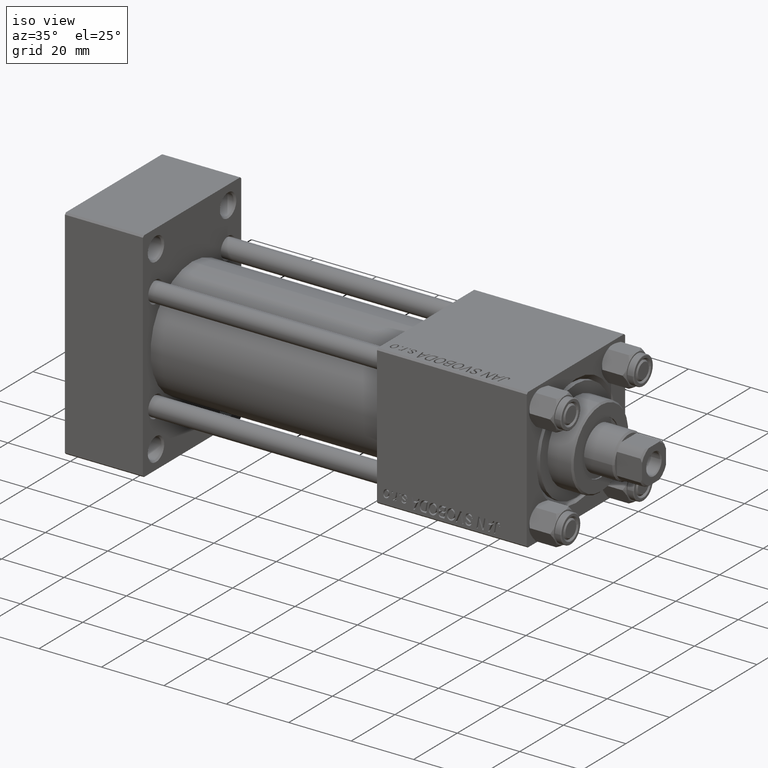
[diagram: clean part render]
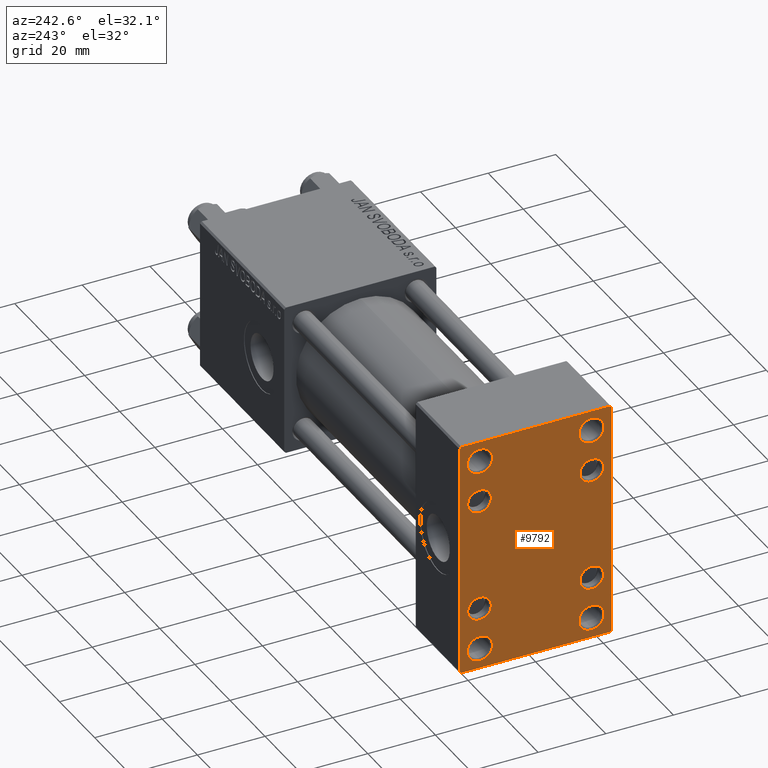
[diagram: tour spotlight — one face highlighted and labeled with its STEP entity id]
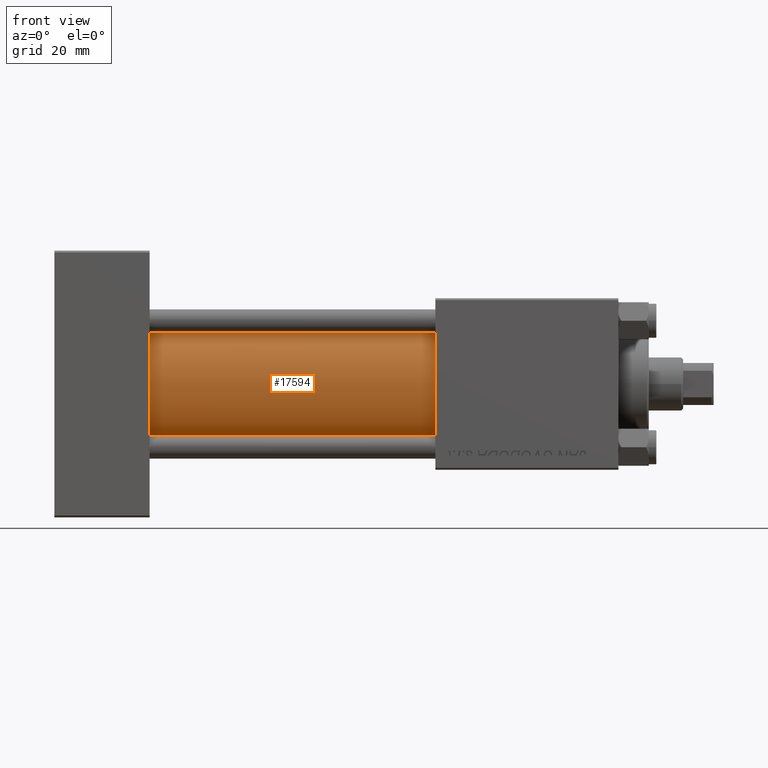
[diagram: tour spotlight — one face highlighted and labeled with its STEP entity id]
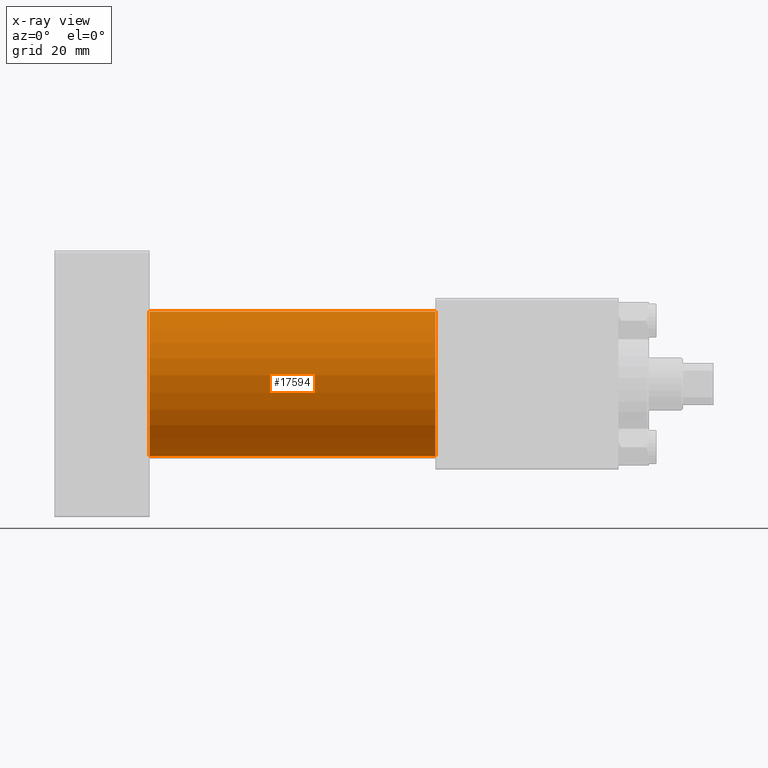
[diagram: x-ray of the same camera — body ghosted, this tour face saturated]
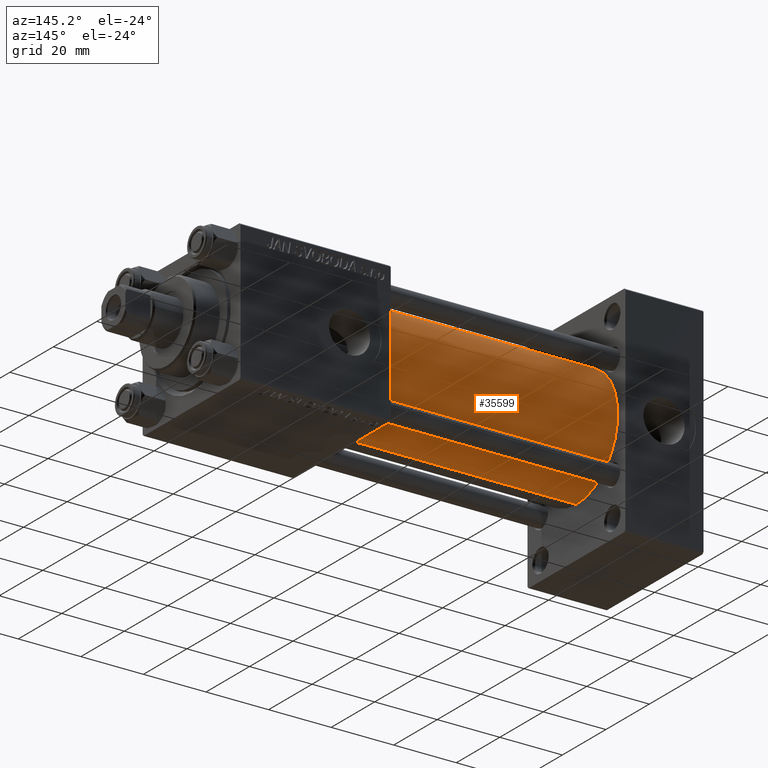
[diagram: tour spotlight — one face highlighted and labeled with its STEP entity id]
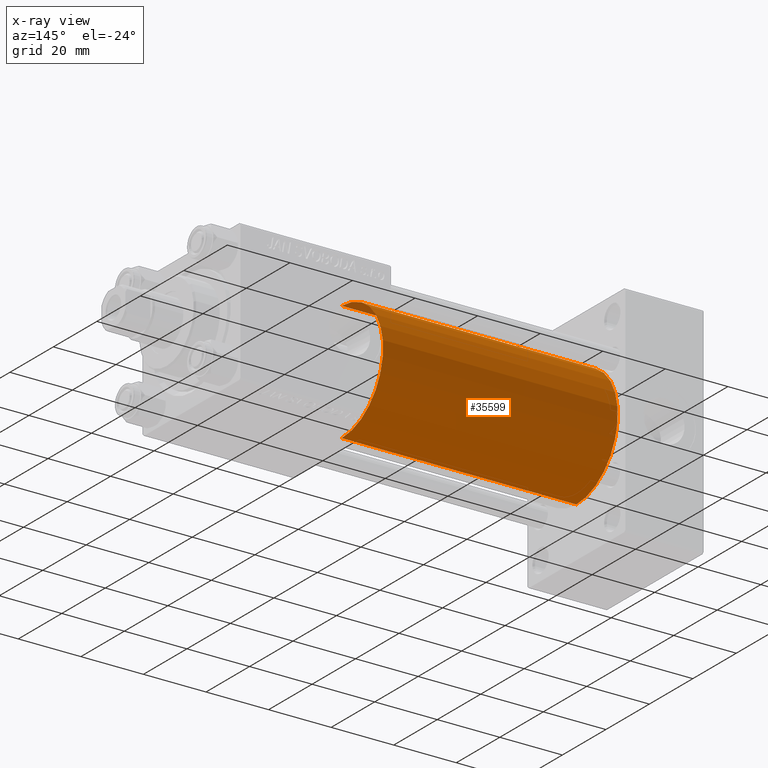
[diagram: x-ray of the same camera — body ghosted, this tour face saturated]
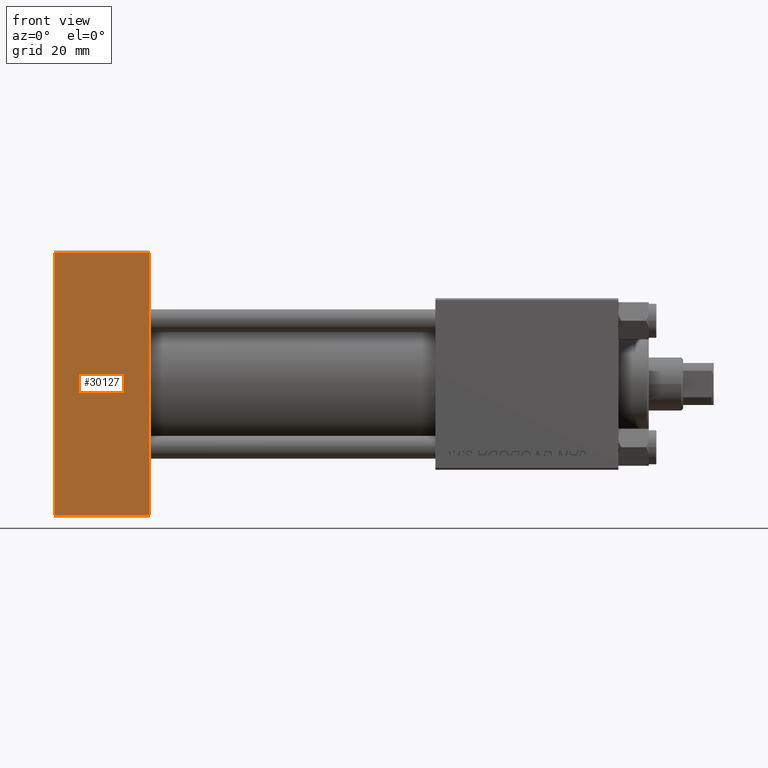
[diagram: tour spotlight — one face highlighted and labeled with its STEP entity id]
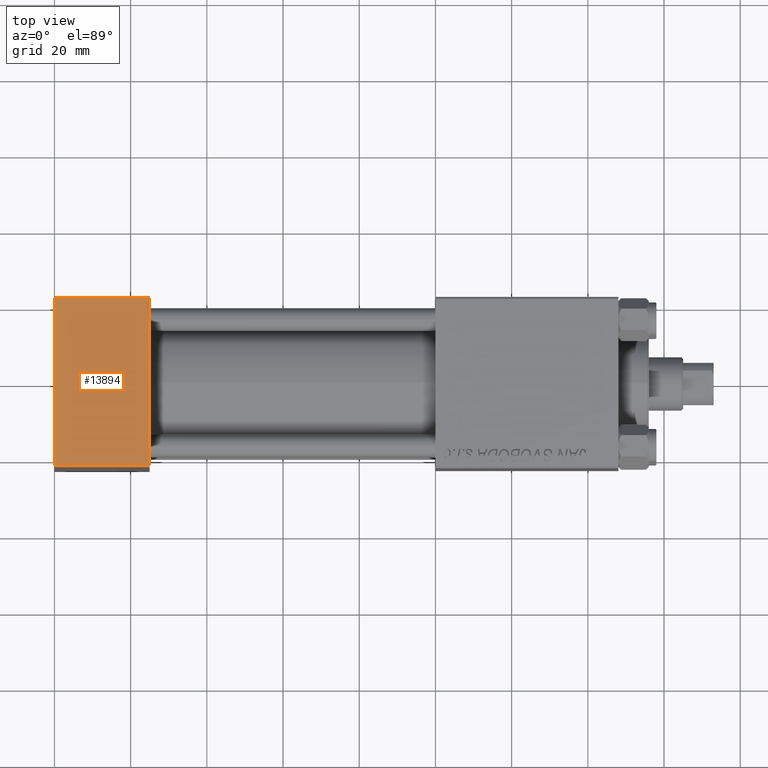
[diagram: tour spotlight — one face highlighted and labeled with its STEP entity id]
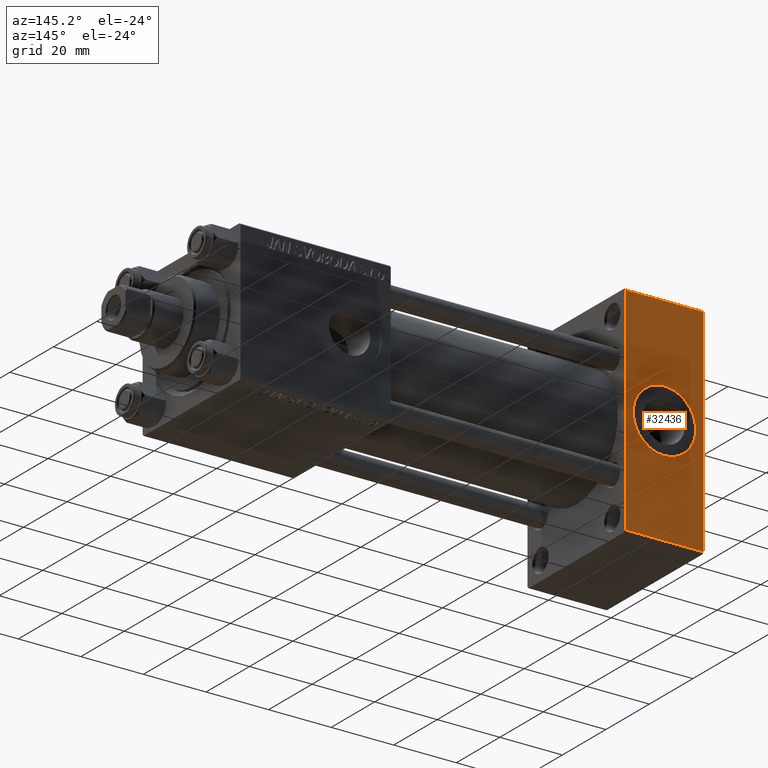
[diagram: tour spotlight — one face highlighted and labeled with its STEP entity id]
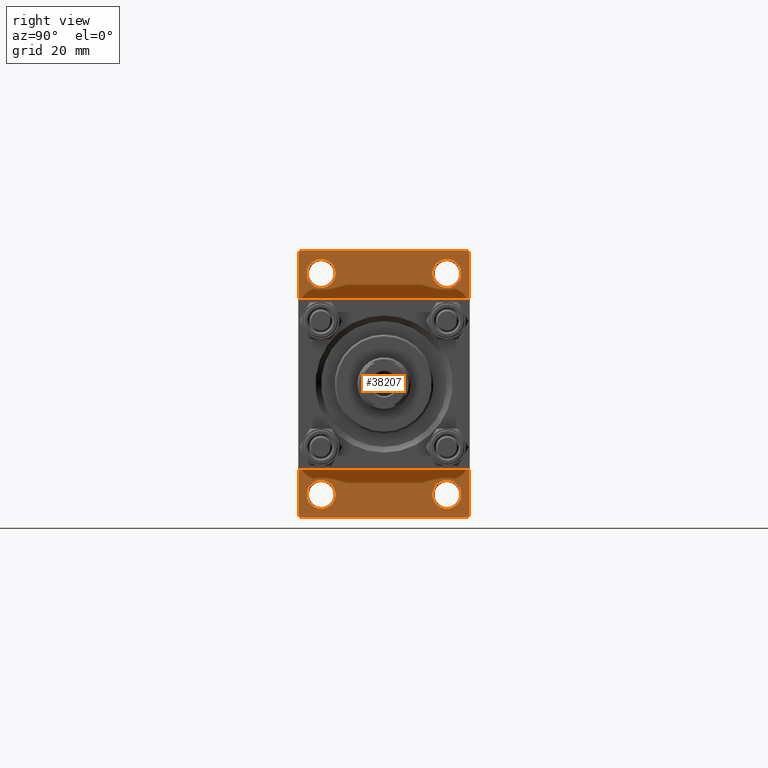
[diagram: tour spotlight — one face highlighted and labeled with its STEP entity id]
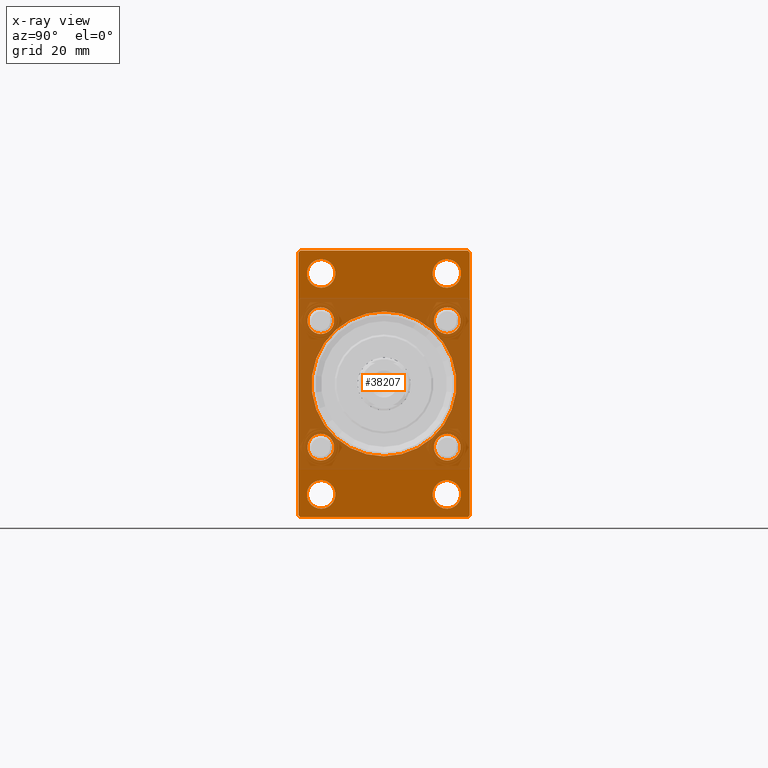
[diagram: x-ray of the same camera — body ghosted, this tour face saturated]
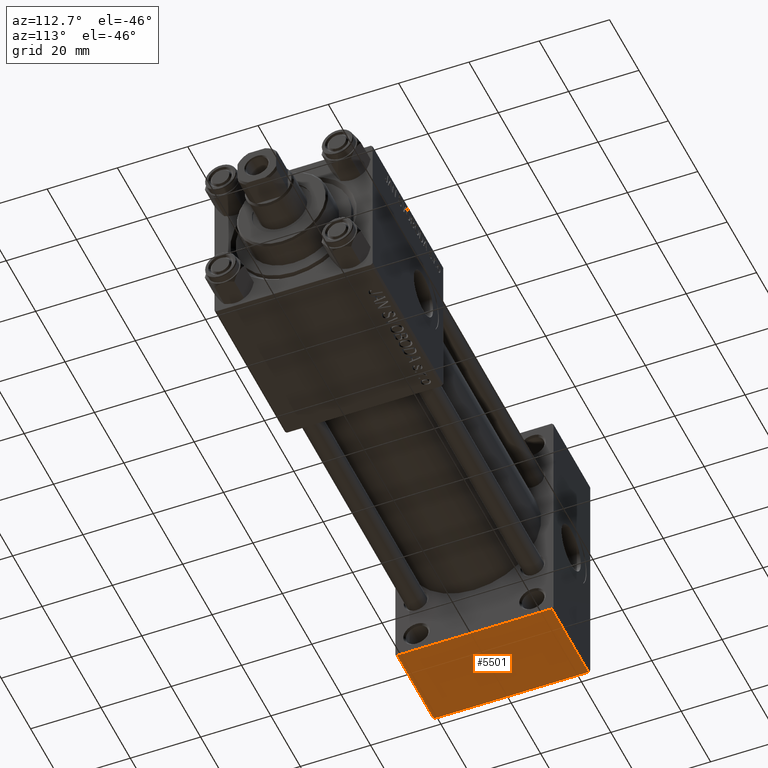
[diagram: tour spotlight — one face highlighted and labeled with its STEP entity id]
A machine part: a face-by-face anatomy tour. The part has 1136 B-rep faces; the first image is the clean iso view, then the 8 largest visible faces are spotlighted one at a time (largest first), each with its STEP entity span.

Face 1 — auxiliary view, entity #9792. In plain terms, the highlighted planar face has unit normal (-1, 0, 0).
Definition (entity closure, byte-faithful):
#54 = CARTESIAN_POINT ( 'NONE',  ( 0.000000000000000000, -16.50000000000000711, 32.74999999999997868 ) ) ;
#274 = CARTESIAN_POINT ( 'NONE',  ( 0.000000000000000000, -16.59999999999999076, 16.60000000000000853 ) ) ;
#377 = CIRCLE ( 'NONE', #39129, 3.499999999999996003 ) ;
#419 = CARTESIAN_POINT ( 'NONE',  ( 0.000000000000000000, -28.50000000000015632, -28.49999999999976197 ) ) ;
#915 = DIRECTION ( 'NONE',  ( 0.000000000000000000, -0.7071067811865426878, 0.7071067811865524577 ) ) ;
#1652 = EDGE_LOOP ( 'NONE', ( #30891, #43502 ) ) ;
#1918 = CARTESIAN_POINT ( 'NONE',  ( 0.000000000000000000, 16.49999999999999289, 32.74999999999999289 ) ) ;
#2078 = CARTESIAN_POINT ( 'NONE',  ( 0.000000000000000000, 22.50000000000000355, 34.49999999999999289 ) ) ;
#2441 = CARTESIAN_POINT ( 'NONE',  ( 0.000000000000000000, -16.50000000000000711, -29.00000000000000711 ) ) ;
#2606 = VERTEX_POINT ( 'NONE', #15072 ) ;
#2699 = VECTOR ( 'NONE', #26073, 1000.000000000000000 ) ;
#3541 = CIRCLE ( 'NONE', #38258, 3.749999999999985789 ) ;
#3669 = VERTEX_POINT ( 'NONE', #3887 ) ;
#3722 = DIRECTION ( 'NONE',  ( 0.000000000000000000, 0.7071067811865376918, -0.7071067811865574537 ) ) ;
#3768 = LINE ( 'NONE', #4525, #41304 ) ;
#3887 = CARTESIAN_POINT ( 'NONE',  ( 0.000000000000000000, -16.50000000000000711, -32.74999999999999289 ) ) ;
#4306 = DIRECTION ( 'NONE',  ( 0.000000000000000000, 0.000000000000000000, 1.000000000000000000 ) ) ;
#4525 = CARTESIAN_POINT ( 'NONE',  ( 0.000000000000000000, -22.49999999999999645, 35.00000000000000000 ) ) ;
#4587 = EDGE_CURVE ( 'NONE', #20318, #7970, #45280, .T. ) ;
#4631 = VERTEX_POINT ( 'NONE', #54 ) ;
#4921 = VECTOR ( 'NONE', #49988, 1000.000000000000000 ) ;
#5232 = CARTESIAN_POINT ( 'NONE',  ( 0.000000000000000000, 16.49999999999999289, -29.00000000000000711 ) ) ;
#5436 = VERTEX_POINT ( 'NONE', #42247 ) ;
#5737 = DIRECTION ( 'NONE',  ( 0.000000000000000000, 0.000000000000000000, 1.000000000000000000 ) ) ;
#5836 = CARTESIAN_POINT ( 'NONE',  ( -0.000000000000000000, -28.50000000000015632, 28.49999999999976197 ) ) ;
#5879 = CIRCLE ( 'NONE', #9130, 3.750000000000003553 ) ;
#6126 = DIRECTION ( 'NONE',  ( 0.000000000000000000, 0.000000000000000000, 1.000000000000000000 ) ) ;
#6500 = CIRCLE ( 'NONE', #16174, 3.499999999999996003 ) ;
#6549 = EDGE_CURVE ( 'NONE', #39045, #26468, #377, .T. ) ;
#6657 = CARTESIAN_POINT ( 'NONE',  ( 0.000000000000000000, -16.59999999999999076, -16.60000000000000853 ) ) ;
#6929 = EDGE_LOOP ( 'NONE', ( #38759, #26846 ) ) ;
#7510 = EDGE_CURVE ( 'NONE', #14067, #7970, #13421, .T. ) ;
#7970 = VERTEX_POINT ( 'NONE', #27978 ) ;
#8056 = CIRCLE ( 'NONE', #25004, 3.499999999999996003 ) ;
#8136 = CARTESIAN_POINT ( 'NONE',  ( 0.000000000000000000, -16.59999999999999076, -16.60000000000000853 ) ) ;
#8447 = EDGE_CURVE ( 'NONE', #13527, #2606, #19622, .T. ) ;
#9123 = DIRECTION ( 'NONE',  ( 0.000000000000000000, 0.000000000000000000, 1.000000000000000000 ) ) ;
#9130 = AXIS2_PLACEMENT_3D ( 'NONE', #38527, #42053, #46092 ) ;
#9152 = ORIENTED_EDGE ( 'NONE', *, *, #15414, .F. ) ;
#9321 = CARTESIAN_POINT ( 'NONE',  ( 0.000000000000000000, -16.59999999999999076, -20.10000000000000497 ) ) ;
#9441 = FACE_BOUND ( 'NONE', #32927, .T. ) ;
#9667 = CARTESIAN_POINT ( 'NONE',  ( 0.000000000000000000, -16.50000000000000711, -29.00000000000000711 ) ) ;
#9688 = FACE_BOUND ( 'NONE', #18509, .T. ) ;
#9706 = CARTESIAN_POINT ( 'NONE',  ( 0.000000000000000000, 16.49999999999999289, 25.24999999999998934 ) ) ;
#9792 = ADVANCED_FACE ( 'NONE', ( #33430, #9441, #40286, #10421, #9688, #36984, #44806, #29394, #41258 ), #17519, .T. ) ;
#10331 = VERTEX_POINT ( 'NONE', #9321 ) ;
#10421 = FACE_BOUND ( 'NONE', #36896, .T. ) ;
#10653 = CARTESIAN_POINT ( 'NONE',  ( 0.000000000000000000, 22.50000000000000355, 35.00000000000000711 ) ) ;
#10823 = DIRECTION ( 'NONE',  ( 1.000000000000000000, -0.000000000000000000, 0.000000000000000000 ) ) ;
#10932 = DIRECTION ( 'NONE',  ( 0.000000000000000000, 0.000000000000000000, 1.000000000000000000 ) ) ;
#10950 = ORIENTED_EDGE ( 'NONE', *, *, #12403, .T. ) ;
#11182 = VECTOR ( 'NONE', #12166, 1000.000000000000000 ) ;
#11563 = AXIS2_PLACEMENT_3D ( 'NONE', #6657, #33446, #41528 ) ;
#11733 = AXIS2_PLACEMENT_3D ( 'NONE', #36488, #17028, #32446 ) ;
#12083 = EDGE_CURVE ( 'NONE', #26614, #20171, #21865, .T. ) ;
#12166 = DIRECTION ( 'NONE',  ( 0.000000000000000000, -1.000000000000000000, -1.541976423090495387E-16 ) ) ;
#12403 = EDGE_CURVE ( 'NONE', #35519, #22310, #19918, .T. ) ;
#12489 = VECTOR ( 'NONE', #25043, 1000.000000000000000 ) ;
#12886 = ORIENTED_EDGE ( 'NONE', *, *, #12083, .T. ) ;
#13035 = VERTEX_POINT ( 'NONE', #40926 ) ;
#13421 = LINE ( 'NONE', #5836, #12489 ) ;
#13527 = VERTEX_POINT ( 'NONE', #24142 ) ;
#13577 = CIRCLE ( 'NONE', #24874, 3.499999999999996003 ) ;
#13835 = DIRECTION ( 'NONE',  ( 0.000000000000000000, 0.000000000000000000, 1.000000000000000000 ) ) ;
#13844 = CARTESIAN_POINT ( 'NONE',  ( 0.000000000000000000, 16.49999999999999289, -29.00000000000000711 ) ) ;
#14067 = VERTEX_POINT ( 'NONE', #42738 ) ;
#14295 = ORIENTED_EDGE ( 'NONE', *, *, #8447, .T. ) ;
#14920 = ORIENTED_EDGE ( 'NONE', *, *, #15496, .T. ) ;
#15052 = AXIS2_PLACEMENT_3D ( 'NONE', #9667, #24592, #6126 ) ;
#15072 = CARTESIAN_POINT ( 'NONE',  ( 0.000000000000000000, -22.49999999999999645, -34.50000000000000000 ) ) ;
#15134 = DIRECTION ( 'NONE',  ( 0.000000000000000000, 0.000000000000000000, -1.000000000000000000 ) ) ;
#15414 = EDGE_CURVE ( 'NONE', #14067, #2606, #3768, .T. ) ;
#15496 = EDGE_CURVE ( 'NONE', #26422, #15735, #49380, .T. ) ;
#15735 = VERTEX_POINT ( 'NONE', #1918 ) ;
#16174 = AXIS2_PLACEMENT_3D ( 'NONE', #45695, #10823, #27248 ) ;
#16405 = VECTOR ( 'NONE', #915, 1000.000000000000000 ) ;
#16598 = DIRECTION ( 'NONE',  ( 0.000000000000000000, 0.000000000000000000, 1.000000000000000000 ) ) ;
#16634 = CARTESIAN_POINT ( 'NONE',  ( 0.000000000000000000, 16.49999999999999289, -32.74999999999999289 ) ) ;
#16712 = CARTESIAN_POINT ( 'NONE',  ( 0.000000000000000000, 16.59999999999999787, -16.60000000000000497 ) ) ;
#17028 = DIRECTION ( 'NONE',  ( -1.000000000000000000, 0.000000000000000000, -0.000000000000000000 ) ) ;
#17230 = CARTESIAN_POINT ( 'NONE',  ( 0.000000000000000000, 22.50000000000000355, -34.49999999999999289 ) ) ;
#17519 = PLANE ( 'NONE',  #11733 ) ;
#17560 = CIRCLE ( 'NONE', #31263, 3.749999999999985789 ) ;
#18275 = CARTESIAN_POINT ( 'NONE',  ( 0.000000000000000000, 16.59999999999999787, 16.60000000000000497 ) ) ;
#18509 = EDGE_LOOP ( 'NONE', ( #35203, #12886 ) ) ;
#19514 = EDGE_CURVE ( 'NONE', #3669, #48978, #3541, .T. ) ;
#19622 = LINE ( 'NONE', #419, #16405 ) ;
#19918 = LINE ( 'NONE', #34822, #4921 ) ;
#20025 = DIRECTION ( 'NONE',  ( 0.000000000000000000, 0.000000000000000000, 1.000000000000000000 ) ) ;
#20096 = CARTESIAN_POINT ( 'NONE',  ( 0.000000000000000000, -16.50000000000000711, 28.99999999999998934 ) ) ;
#20171 = VERTEX_POINT ( 'NONE', #22709 ) ;
#20318 = VERTEX_POINT ( 'NONE', #29240 ) ;
#20359 = VERTEX_POINT ( 'NONE', #37078 ) ;
#20845 = CIRCLE ( 'NONE', #34540, 3.499999999999996003 ) ;
#21586 = EDGE_CURVE ( 'NONE', #15735, #26422, #5879, .T. ) ;
#21681 = DIRECTION ( 'NONE',  ( 0.000000000000000000, 0.000000000000000000, 1.000000000000000000 ) ) ;
#21865 = CIRCLE ( 'NONE', #40417, 3.499999999999996003 ) ;
#21893 = DIRECTION ( 'NONE',  ( 1.000000000000000000, -0.000000000000000000, 0.000000000000000000 ) ) ;
#22049 = EDGE_CURVE ( 'NONE', #5436, #10331, #31741, .T. ) ;
#22141 = CIRCLE ( 'NONE', #31013, 3.749999999999989342 ) ;
#22258 = ORIENTED_EDGE ( 'NONE', *, *, #24786, .T. ) ;
#22310 = VERTEX_POINT ( 'NONE', #17230 ) ;
#22709 = CARTESIAN_POINT ( 'NONE',  ( 0.000000000000000000, -16.59999999999999076, 20.10000000000000853 ) ) ;
#23082 = CARTESIAN_POINT ( 'NONE',  ( 0.000000000000000000, -16.59999999999999076, 13.10000000000001030 ) ) ;
#24142 = CARTESIAN_POINT ( 'NONE',  ( 0.000000000000000000, -21.99999999999998934, -35.00000000000000000 ) ) ;
#24318 = LINE ( 'NONE', #32901, #45073 ) ;
#24372 = CARTESIAN_POINT ( 'NONE',  ( 0.000000000000000000, -16.50000000000000711, 25.25000000000000000 ) ) ;
#24592 = DIRECTION ( 'NONE',  ( 1.000000000000000000, -0.000000000000000000, 0.000000000000000000 ) ) ;
#24638 = ORIENTED_EDGE ( 'NONE', *, *, #21586, .T. ) ;
#24786 = EDGE_CURVE ( 'NONE', #36145, #4631, #22141, .T. ) ;
#24874 = AXIS2_PLACEMENT_3D ( 'NONE', #8136, #38226, #46037 ) ;
#25004 = AXIS2_PLACEMENT_3D ( 'NONE', #27610, #28351, #20025 ) ;
#25043 = DIRECTION ( 'NONE',  ( -0.000000000000000000, 0.7071067811865426878, 0.7071067811865524577 ) ) ;
#25291 = EDGE_CURVE ( 'NONE', #45511, #13035, #31854, .T. ) ;
#25477 = CARTESIAN_POINT ( 'NONE',  ( 0.000000000000000000, 16.59999999999999787, -13.10000000000000675 ) ) ;
#25653 = CIRCLE ( 'NONE', #28887, 3.499999999999996003 ) ;
#26073 = DIRECTION ( 'NONE',  ( 0.000000000000000000, -1.000000000000000000, -1.541976423090495387E-16 ) ) ;
#26422 = VERTEX_POINT ( 'NONE', #9706 ) ;
#26468 = VERTEX_POINT ( 'NONE', #48128 ) ;
#26614 = VERTEX_POINT ( 'NONE', #23082 ) ;
#26846 = ORIENTED_EDGE ( 'NONE', *, *, #43865, .T. ) ;
#27248 = DIRECTION ( 'NONE',  ( 0.000000000000000000, 0.000000000000000000, 1.000000000000000000 ) ) ;
#27337 = DIRECTION ( 'NONE',  ( 1.000000000000000000, -0.000000000000000000, 0.000000000000000000 ) ) ;
#27610 = CARTESIAN_POINT ( 'NONE',  ( 0.000000000000000000, -16.59999999999999076, 16.60000000000000853 ) ) ;
#27978 = CARTESIAN_POINT ( 'NONE',  ( 0.000000000000000000, -21.99999999999998934, 35.00000000000000000 ) ) ;
#28351 = DIRECTION ( 'NONE',  ( 1.000000000000000000, -0.000000000000000000, 0.000000000000000000 ) ) ;
#28887 = AXIS2_PLACEMENT_3D ( 'NONE', #18275, #48862, #10932 ) ;
#29019 = DIRECTION ( 'NONE',  ( 1.000000000000000000, -0.000000000000000000, 0.000000000000000000 ) ) ;
#29059 = VECTOR ( 'NONE', #3722, 999.9999999999998863 ) ;
#29163 = DIRECTION ( 'NONE',  ( 0.000000000000000000, 0.000000000000000000, 1.000000000000000000 ) ) ;
#29240 = CARTESIAN_POINT ( 'NONE',  ( 0.000000000000000000, 22.00000000000000355, 35.00000000000000711 ) ) ;
#29256 = CARTESIAN_POINT ( 'NONE',  ( 0.000000000000000000, 16.49999999999999289, 28.99999999999998934 ) ) ;
#29394 = FACE_BOUND ( 'NONE', #1652, .T. ) ;
#29910 = VERTEX_POINT ( 'NONE', #32918 ) ;
#29920 = EDGE_CURVE ( 'NONE', #48978, #3669, #30394, .T. ) ;
#29943 = EDGE_LOOP ( 'NONE', ( #10950, #34763, #43314, #14295, #9152, #49338, #47562, #44256 ) ) ;
#30394 = CIRCLE ( 'NONE', #15052, 3.749999999999985789 ) ;
#30891 = ORIENTED_EDGE ( 'NONE', *, *, #39863, .T. ) ;
#30909 = EDGE_CURVE ( 'NONE', #4631, #36145, #33644, .T. ) ;
#31013 = AXIS2_PLACEMENT_3D ( 'NONE', #20096, #36005, #42838 ) ;
#31053 = AXIS2_PLACEMENT_3D ( 'NONE', #5232, #40353, #16598 ) ;
#31127 = DIRECTION ( 'NONE',  ( 0.000000000000000000, 0.000000000000000000, 1.000000000000000000 ) ) ;
#31215 = ORIENTED_EDGE ( 'NONE', *, *, #30909, .T. ) ;
#31263 = AXIS2_PLACEMENT_3D ( 'NONE', #13844, #29019, #21681 ) ;
#31741 = CIRCLE ( 'NONE', #11563, 3.499999999999996003 ) ;
#31854 = CIRCLE ( 'NONE', #31053, 3.749999999999985789 ) ;
#31960 = CARTESIAN_POINT ( 'NONE',  ( 0.000000000000000000, 16.59999999999999787, -16.60000000000000497 ) ) ;
#32127 = DIRECTION ( 'NONE',  ( 1.000000000000000000, -0.000000000000000000, 0.000000000000000000 ) ) ;
#32226 = EDGE_CURVE ( 'NONE', #13035, #45511, #17560, .T. ) ;
#32446 = DIRECTION ( 'NONE',  ( -0.000000000000000000, 0.000000000000000000, 1.000000000000000000 ) ) ;
#32901 = CARTESIAN_POINT ( 'NONE',  ( 0.000000000000000000, 28.49999999999984013, -28.50000000000024158 ) ) ;
#32918 = CARTESIAN_POINT ( 'NONE',  ( 0.000000000000000000, 16.59999999999999787, 20.10000000000000142 ) ) ;
#32927 = EDGE_LOOP ( 'NONE', ( #31215, #22258 ) ) ;
#33430 = FACE_BOUND ( 'NONE', #43772, .T. ) ;
#33446 = DIRECTION ( 'NONE',  ( 1.000000000000000000, -0.000000000000000000, 0.000000000000000000 ) ) ;
#33644 = CIRCLE ( 'NONE', #40122, 3.749999999999989342 ) ;
#34540 = AXIS2_PLACEMENT_3D ( 'NONE', #31960, #36505, #29163 ) ;
#34763 = ORIENTED_EDGE ( 'NONE', *, *, #40603, .T. ) ;
#34822 = CARTESIAN_POINT ( 'NONE',  ( 0.000000000000000000, 22.50000000000000355, 35.00000000000000711 ) ) ;
#35203 = ORIENTED_EDGE ( 'NONE', *, *, #38662, .T. ) ;
#35519 = VERTEX_POINT ( 'NONE', #2078 ) ;
#35695 = EDGE_LOOP ( 'NONE', ( #46134, #49624 ) ) ;
#35920 = CARTESIAN_POINT ( 'NONE',  ( 0.000000000000000000, 22.50000000000000355, -34.99999999999999289 ) ) ;
#36005 = DIRECTION ( 'NONE',  ( 1.000000000000000000, -0.000000000000000000, 0.000000000000000000 ) ) ;
#36145 = VERTEX_POINT ( 'NONE', #24372 ) ;
#36275 = ORIENTED_EDGE ( 'NONE', *, *, #19514, .T. ) ;
#36488 = CARTESIAN_POINT ( 'NONE',  ( 0.000000000000000000, 0.000000000000000000, 0.000000000000000000 ) ) ;
#36490 = AXIS2_PLACEMENT_3D ( 'NONE', #29256, #40885, #13835 ) ;
#36505 = DIRECTION ( 'NONE',  ( 1.000000000000000000, -0.000000000000000000, 0.000000000000000000 ) ) ;
#36896 = EDGE_LOOP ( 'NONE', ( #41969, #38570 ) ) ;
#36984 = FACE_BOUND ( 'NONE', #6929, .T. ) ;
#37078 = CARTESIAN_POINT ( 'NONE',  ( 0.000000000000000000, 21.99999999999999645, -34.99999999999999289 ) ) ;
#38226 = DIRECTION ( 'NONE',  ( 1.000000000000000000, -0.000000000000000000, 0.000000000000000000 ) ) ;
#38258 = AXIS2_PLACEMENT_3D ( 'NONE', #2441, #21893, #5737 ) ;
#38527 = CARTESIAN_POINT ( 'NONE',  ( 0.000000000000000000, 16.49999999999999289, 28.99999999999998934 ) ) ;
#38570 = ORIENTED_EDGE ( 'NONE', *, *, #25291, .T. ) ;
#38662 = EDGE_CURVE ( 'NONE', #20171, #26614, #8056, .T. ) ;
#38759 = ORIENTED_EDGE ( 'NONE', *, *, #22049, .T. ) ;
#39045 = VERTEX_POINT ( 'NONE', #25477 ) ;
#39129 = AXIS2_PLACEMENT_3D ( 'NONE', #16712, #32127, #31127 ) ;
#39196 = DIRECTION ( 'NONE',  ( 1.000000000000000000, -0.000000000000000000, 0.000000000000000000 ) ) ;
#39473 = LINE ( 'NONE', #35920, #11182 ) ;
#39696 = EDGE_CURVE ( 'NONE', #26468, #39045, #20845, .T. ) ;
#39863 = EDGE_CURVE ( 'NONE', #29910, #47195, #25653, .T. ) ;
#40122 = AXIS2_PLACEMENT_3D ( 'NONE', #46796, #27337, #9123 ) ;
#40286 = FACE_BOUND ( 'NONE', #47814, .T. ) ;
#40353 = DIRECTION ( 'NONE',  ( 1.000000000000000000, -0.000000000000000000, 0.000000000000000000 ) ) ;
#40417 = AXIS2_PLACEMENT_3D ( 'NONE', #274, #39196, #4306 ) ;
#40603 = EDGE_CURVE ( 'NONE', #22310, #20359, #24318, .T. ) ;
#40885 = DIRECTION ( 'NONE',  ( 1.000000000000000000, -0.000000000000000000, 0.000000000000000000 ) ) ;
#40926 = CARTESIAN_POINT ( 'NONE',  ( 0.000000000000000000, 16.49999999999999289, -25.25000000000002132 ) ) ;
#41258 = FACE_OUTER_BOUND ( 'NONE', #29943, .T. ) ;
#41304 = VECTOR ( 'NONE', #15134, 1000.000000000000000 ) ;
#41528 = DIRECTION ( 'NONE',  ( 0.000000000000000000, 0.000000000000000000, 1.000000000000000000 ) ) ;
#41969 = ORIENTED_EDGE ( 'NONE', *, *, #32226, .T. ) ;
#42053 = DIRECTION ( 'NONE',  ( 1.000000000000000000, -0.000000000000000000, 0.000000000000000000 ) ) ;
#42134 = CARTESIAN_POINT ( 'NONE',  ( 0.000000000000000000, 28.50000000000030909, 28.49999999999952038 ) ) ;
#42247 = CARTESIAN_POINT ( 'NONE',  ( 0.000000000000000000, -16.59999999999999076, -13.10000000000001030 ) ) ;
#42738 = CARTESIAN_POINT ( 'NONE',  ( 0.000000000000000000, -22.49999999999999645, 34.50000000000000000 ) ) ;
#42838 = DIRECTION ( 'NONE',  ( 0.000000000000000000, 0.000000000000000000, 1.000000000000000000 ) ) ;
#43314 = ORIENTED_EDGE ( 'NONE', *, *, #46064, .T. ) ;
#43444 = ORIENTED_EDGE ( 'NONE', *, *, #29920, .T. ) ;
#43502 = ORIENTED_EDGE ( 'NONE', *, *, #50003, .T. ) ;
#43772 = EDGE_LOOP ( 'NONE', ( #24638, #14920 ) ) ;
#43865 = EDGE_CURVE ( 'NONE', #10331, #5436, #13577, .T. ) ;
#44256 = ORIENTED_EDGE ( 'NONE', *, *, #49324, .T. ) ;
#44806 = FACE_BOUND ( 'NONE', #35695, .T. ) ;
#45073 = VECTOR ( 'NONE', #48071, 999.9999999999998863 ) ;
#45232 = CARTESIAN_POINT ( 'NONE',  ( 0.000000000000000000, -16.50000000000000711, -25.25000000000002132 ) ) ;
#45280 = LINE ( 'NONE', #10653, #2699 ) ;
#45511 = VERTEX_POINT ( 'NONE', #16634 ) ;
#45672 = LINE ( 'NONE', #42134, #29059 ) ;
#45695 = CARTESIAN_POINT ( 'NONE',  ( 0.000000000000000000, 16.59999999999999787, 16.60000000000000497 ) ) ;
#46037 = DIRECTION ( 'NONE',  ( 0.000000000000000000, 0.000000000000000000, 1.000000000000000000 ) ) ;
#46064 = EDGE_CURVE ( 'NONE', #20359, #13527, #39473, .T. ) ;
#46092 = DIRECTION ( 'NONE',  ( 0.000000000000000000, 0.000000000000000000, 1.000000000000000000 ) ) ;
#46134 = ORIENTED_EDGE ( 'NONE', *, *, #6549, .T. ) ;
#46796 = CARTESIAN_POINT ( 'NONE',  ( 0.000000000000000000, -16.50000000000000711, 28.99999999999998934 ) ) ;
#47195 = VERTEX_POINT ( 'NONE', #49694 ) ;
#47562 = ORIENTED_EDGE ( 'NONE', *, *, #4587, .F. ) ;
#47814 = EDGE_LOOP ( 'NONE', ( #43444, #36275 ) ) ;
#48071 = DIRECTION ( 'NONE',  ( -0.000000000000000000, -0.7071067811865525687, -0.7071067811865425767 ) ) ;
#48128 = CARTESIAN_POINT ( 'NONE',  ( 0.000000000000000000, 16.59999999999999787, -20.10000000000000142 ) ) ;
#48862 = DIRECTION ( 'NONE',  ( 1.000000000000000000, -0.000000000000000000, 0.000000000000000000 ) ) ;
#48978 = VERTEX_POINT ( 'NONE', #45232 ) ;
#49324 = EDGE_CURVE ( 'NONE', #20318, #35519, #45672, .T. ) ;
#49338 = ORIENTED_EDGE ( 'NONE', *, *, #7510, .T. ) ;
#49380 = CIRCLE ( 'NONE', #36490, 3.750000000000003553 ) ;
#49624 = ORIENTED_EDGE ( 'NONE', *, *, #39696, .T. ) ;
#49694 = CARTESIAN_POINT ( 'NONE',  ( 0.000000000000000000, 16.59999999999999787, 13.10000000000000675 ) ) ;
#49988 = DIRECTION ( 'NONE',  ( 0.000000000000000000, 0.000000000000000000, -1.000000000000000000 ) ) ;
#50003 = EDGE_CURVE ( 'NONE', #47195, #29910, #6500, .T. ) ;

Face 2 — front view, entity #17594. An x-ray twin of the same camera follows (body ghosted, this face saturated) — the face is partly hidden behind the body. In plain terms, the highlighted cylindrical surface (partial cylindrical patch) has radius 19 mm, axis along (-1, -0, -0).
Definition (entity closure, byte-faithful):
#55 = CIRCLE ( 'NONE', #849, 19.00000000000000000 ) ;
#135 = VERTEX_POINT ( 'NONE', #6116 ) ;
#849 = AXIS2_PLACEMENT_3D ( 'NONE', #34876, #4294, #27548 ) ;
#1674 = CIRCLE ( 'NONE', #12954, 19.00000000000000000 ) ;
#3033 = EDGE_CURVE ( 'NONE', #135, #40927, #3315, .T. ) ;
#3315 = LINE ( 'NONE', #18735, #19628 ) ;
#3468 = CYLINDRICAL_SURFACE ( 'NONE', #34124, 19.00000000000000000 ) ;
#4294 = DIRECTION ( 'NONE',  ( 1.000000000000000000, -0.000000000000000000, 0.000000000000000000 ) ) ;
#5727 = LINE ( 'NONE', #21143, #18307 ) ;
#6116 = CARTESIAN_POINT ( 'NONE',  ( 100.0000000000000000, -2.752562955852396712E-16, -19.00000000000000000 ) ) ;
#6599 = EDGE_LOOP ( 'NONE', ( #20037, #25038, #30970, #14647 ) ) ;
#10400 = VERTEX_POINT ( 'NONE', #13355 ) ;
#11131 = DIRECTION ( 'NONE',  ( -1.000000000000000000, -0.000000000000000000, -0.000000000000000000 ) ) ;
#11152 = EDGE_CURVE ( 'NONE', #40744, #40927, #55, .T. ) ;
#11536 = DIRECTION ( 'NONE',  ( 0.000000000000000000, 0.000000000000000000, 1.000000000000000000 ) ) ;
#11664 = EDGE_CURVE ( 'NONE', #10400, #135, #1674, .T. ) ;
#12954 = AXIS2_PLACEMENT_3D ( 'NONE', #35202, #35449, #20537 ) ;
#13355 = CARTESIAN_POINT ( 'NONE',  ( 100.0000000000000000, -2.602085213965210642E-15, 19.00000000000000000 ) ) ;
#14529 = DIRECTION ( 'NONE',  ( -1.000000000000000000, -0.000000000000000000, -0.000000000000000000 ) ) ;
#14647 = ORIENTED_EDGE ( 'NONE', *, *, #11152, .T. ) ;
#15334 = FACE_OUTER_BOUND ( 'NONE', #6599, .T. ) ;
#17208 = CARTESIAN_POINT ( 'NONE',  ( 24.99999999999999289, -2.752562955852396712E-16, -19.00000000000000000 ) ) ;
#17594 = ADVANCED_FACE ( 'NONE', ( #15334 ), #3468, .T. ) ;
#18307 = VECTOR ( 'NONE', #14529, 1000.000000000000000 ) ;
#18735 = CARTESIAN_POINT ( 'NONE',  ( 100.0000000000000000, -2.752562955852396712E-16, -19.00000000000000000 ) ) ;
#19628 = VECTOR ( 'NONE', #11131, 1000.000000000000000 ) ;
#20037 = ORIENTED_EDGE ( 'NONE', *, *, #3033, .F. ) ;
#20537 = DIRECTION ( 'NONE',  ( 0.000000000000000000, 0.000000000000000000, -1.000000000000000000 ) ) ;
#21143 = CARTESIAN_POINT ( 'NONE',  ( 100.0000000000000000, -2.602085213965210642E-15, 19.00000000000000000 ) ) ;
#22023 = CARTESIAN_POINT ( 'NONE',  ( 24.99999999999999289, -2.602085213965210642E-15, 19.00000000000000000 ) ) ;
#25038 = ORIENTED_EDGE ( 'NONE', *, *, #11664, .F. ) ;
#27548 = DIRECTION ( 'NONE',  ( 0.000000000000000000, 0.000000000000000000, 1.000000000000000000 ) ) ;
#30743 = CARTESIAN_POINT ( 'NONE',  ( 100.0000000000000000, -2.602085213965210642E-15, 0.000000000000000000 ) ) ;
#30970 = ORIENTED_EDGE ( 'NONE', *, *, #33982, .T. ) ;
#33982 = EDGE_CURVE ( 'NONE', #10400, #40744, #5727, .T. ) ;
#34124 = AXIS2_PLACEMENT_3D ( 'NONE', #30743, #46165, #11536 ) ;
#34876 = CARTESIAN_POINT ( 'NONE',  ( 24.99999999999999289, -2.602085213965210642E-15, 0.000000000000000000 ) ) ;
#35202 = CARTESIAN_POINT ( 'NONE',  ( 100.0000000000000000, -2.602085213965210642E-15, 0.000000000000000000 ) ) ;
#35449 = DIRECTION ( 'NONE',  ( 1.000000000000000000, 0.000000000000000000, 0.000000000000000000 ) ) ;
#40744 = VERTEX_POINT ( 'NONE', #22023 ) ;
#40927 = VERTEX_POINT ( 'NONE', #17208 ) ;
#46165 = DIRECTION ( 'NONE',  ( -1.000000000000000000, -0.000000000000000000, -0.000000000000000000 ) ) ;

Face 3 — auxiliary view, entity #35599. An x-ray twin of the same camera follows (body ghosted, this face saturated) — the face is partly hidden behind the body. In plain terms, the highlighted cylindrical surface (partial cylindrical patch) has radius 19 mm, axis along (-1, -0, -0).
Definition (entity closure, byte-faithful):
#135 = VERTEX_POINT ( 'NONE', #6116 ) ;
#618 = AXIS2_PLACEMENT_3D ( 'NONE', #13693, #41230, #21778 ) ;
#1298 = DIRECTION ( 'NONE',  ( 1.000000000000000000, -0.000000000000000000, 0.000000000000000000 ) ) ;
#2528 = EDGE_CURVE ( 'NONE', #40927, #40744, #9100, .T. ) ;
#3033 = EDGE_CURVE ( 'NONE', #135, #40927, #3315, .T. ) ;
#3315 = LINE ( 'NONE', #18735, #19628 ) ;
#4219 = AXIS2_PLACEMENT_3D ( 'NONE', #28334, #1298, #17878 ) ;
#5727 = LINE ( 'NONE', #21143, #18307 ) ;
#6116 = CARTESIAN_POINT ( 'NONE',  ( 100.0000000000000000, -2.752562955852396712E-16, -19.00000000000000000 ) ) ;
#6241 = ORIENTED_EDGE ( 'NONE', *, *, #3033, .T. ) ;
#7039 = CARTESIAN_POINT ( 'NONE',  ( 100.0000000000000000, -2.602085213965210642E-15, 0.000000000000000000 ) ) ;
#7471 = EDGE_LOOP ( 'NONE', ( #29179, #6241, #44876, #12579 ) ) ;
#9100 = CIRCLE ( 'NONE', #4219, 19.00000000000000000 ) ;
#10400 = VERTEX_POINT ( 'NONE', #13355 ) ;
#11131 = DIRECTION ( 'NONE',  ( -1.000000000000000000, -0.000000000000000000, -0.000000000000000000 ) ) ;
#12579 = ORIENTED_EDGE ( 'NONE', *, *, #33982, .F. ) ;
#13355 = CARTESIAN_POINT ( 'NONE',  ( 100.0000000000000000, -2.602085213965210642E-15, 19.00000000000000000 ) ) ;
#13693 = CARTESIAN_POINT ( 'NONE',  ( 100.0000000000000000, -2.602085213965210642E-15, 0.000000000000000000 ) ) ;
#14529 = DIRECTION ( 'NONE',  ( -1.000000000000000000, -0.000000000000000000, -0.000000000000000000 ) ) ;
#17208 = CARTESIAN_POINT ( 'NONE',  ( 24.99999999999999289, -2.752562955852396712E-16, -19.00000000000000000 ) ) ;
#17878 = DIRECTION ( 'NONE',  ( 0.000000000000000000, 0.000000000000000000, 1.000000000000000000 ) ) ;
#18307 = VECTOR ( 'NONE', #14529, 1000.000000000000000 ) ;
#18479 = FACE_OUTER_BOUND ( 'NONE', #7471, .T. ) ;
#18735 = CARTESIAN_POINT ( 'NONE',  ( 100.0000000000000000, -2.752562955852396712E-16, -19.00000000000000000 ) ) ;
#19259 = EDGE_CURVE ( 'NONE', #135, #10400, #28548, .T. ) ;
#19628 = VECTOR ( 'NONE', #11131, 1000.000000000000000 ) ;
#21143 = CARTESIAN_POINT ( 'NONE',  ( 100.0000000000000000, -2.602085213965210642E-15, 19.00000000000000000 ) ) ;
#21778 = DIRECTION ( 'NONE',  ( 0.000000000000000000, 0.000000000000000000, 1.000000000000000000 ) ) ;
#22023 = CARTESIAN_POINT ( 'NONE',  ( 24.99999999999999289, -2.602085213965210642E-15, 19.00000000000000000 ) ) ;
#28334 = CARTESIAN_POINT ( 'NONE',  ( 24.99999999999999289, -2.602085213965210642E-15, 0.000000000000000000 ) ) ;
#28548 = CIRCLE ( 'NONE', #47130, 19.00000000000000000 ) ;
#29179 = ORIENTED_EDGE ( 'NONE', *, *, #19259, .F. ) ;
#29846 = CYLINDRICAL_SURFACE ( 'NONE', #618, 19.00000000000000000 ) ;
#31028 = DIRECTION ( 'NONE',  ( 1.000000000000000000, 0.000000000000000000, 0.000000000000000000 ) ) ;
#33982 = EDGE_CURVE ( 'NONE', #10400, #40744, #5727, .T. ) ;
#35599 = ADVANCED_FACE ( 'NONE', ( #18479 ), #29846, .T. ) ;
#40744 = VERTEX_POINT ( 'NONE', #22023 ) ;
#40927 = VERTEX_POINT ( 'NONE', #17208 ) ;
#41230 = DIRECTION ( 'NONE',  ( -1.000000000000000000, -0.000000000000000000, -0.000000000000000000 ) ) ;
#44876 = ORIENTED_EDGE ( 'NONE', *, *, #2528, .T. ) ;
#45939 = DIRECTION ( 'NONE',  ( 0.000000000000000000, 0.000000000000000000, -1.000000000000000000 ) ) ;
#47130 = AXIS2_PLACEMENT_3D ( 'NONE', #7039, #31028, #45939 ) ;

Face 4 — front view, entity #30127. In plain terms, the highlighted planar face has unit normal (0, 1, 0).
Definition (entity closure, byte-faithful):
#128 = EDGE_LOOP ( 'NONE', ( #18238, #28035, #16713, #11710 ) ) ;
#1074 = VERTEX_POINT ( 'NONE', #35532 ) ;
#1287 = DIRECTION ( 'NONE',  ( -0.000000000000000000, 1.000000000000000000, 0.000000000000000000 ) ) ;
#2606 = VERTEX_POINT ( 'NONE', #15072 ) ;
#3768 = LINE ( 'NONE', #4525, #41304 ) ;
#4525 = CARTESIAN_POINT ( 'NONE',  ( 0.000000000000000000, -22.49999999999999645, 35.00000000000000000 ) ) ;
#4839 = CARTESIAN_POINT ( 'NONE',  ( 25.00000000000000000, -22.49999999999999645, 34.50000000000000000 ) ) ;
#5224 = EDGE_CURVE ( 'NONE', #30906, #14067, #39845, .T. ) ;
#9254 = DIRECTION ( 'NONE',  ( -1.000000000000000000, 0.000000000000000000, 0.000000000000000000 ) ) ;
#11710 = ORIENTED_EDGE ( 'NONE', *, *, #5224, .T. ) ;
#12787 = CARTESIAN_POINT ( 'NONE',  ( 25.00000000000000000, -22.49999999999999645, 34.50000000000000000 ) ) ;
#14067 = VERTEX_POINT ( 'NONE', #42738 ) ;
#15072 = CARTESIAN_POINT ( 'NONE',  ( 0.000000000000000000, -22.49999999999999645, -34.50000000000000000 ) ) ;
#15134 = DIRECTION ( 'NONE',  ( 0.000000000000000000, 0.000000000000000000, -1.000000000000000000 ) ) ;
#15414 = EDGE_CURVE ( 'NONE', #14067, #2606, #3768, .T. ) ;
#16693 = DIRECTION ( 'NONE',  ( 0.000000000000000000, -0.000000000000000000, 1.000000000000000000 ) ) ;
#16713 = ORIENTED_EDGE ( 'NONE', *, *, #41321, .F. ) ;
#17492 = AXIS2_PLACEMENT_3D ( 'NONE', #47779, #1287, #16693 ) ;
#18238 = ORIENTED_EDGE ( 'NONE', *, *, #15414, .T. ) ;
#19078 = CARTESIAN_POINT ( 'NONE',  ( 25.00000000000000000, -22.49999999999999645, 35.00000000000000000 ) ) ;
#22117 = DIRECTION ( 'NONE',  ( 0.000000000000000000, 0.000000000000000000, -1.000000000000000000 ) ) ;
#22747 = CARTESIAN_POINT ( 'NONE',  ( 25.00000000000000000, -22.49999999999999645, -34.50000000000000000 ) ) ;
#23297 = VECTOR ( 'NONE', #22117, 1000.000000000000000 ) ;
#26649 = LINE ( 'NONE', #19078, #23297 ) ;
#28035 = ORIENTED_EDGE ( 'NONE', *, *, #38850, .T. ) ;
#29067 = FACE_OUTER_BOUND ( 'NONE', #128, .T. ) ;
#30127 = ADVANCED_FACE ( 'NONE', ( #29067 ), #36906, .F. ) ;
#30906 = VERTEX_POINT ( 'NONE', #4839 ) ;
#35532 = CARTESIAN_POINT ( 'NONE',  ( 25.00000000000000000, -22.49999999999999645, -34.50000000000000000 ) ) ;
#36906 = PLANE ( 'NONE',  #17492 ) ;
#38850 = EDGE_CURVE ( 'NONE', #2606, #1074, #41705, .T. ) ;
#39845 = LINE ( 'NONE', #12787, #41487 ) ;
#40351 = VECTOR ( 'NONE', #49785, 1000.000000000000000 ) ;
#41304 = VECTOR ( 'NONE', #15134, 1000.000000000000000 ) ;
#41321 = EDGE_CURVE ( 'NONE', #30906, #1074, #26649, .T. ) ;
#41487 = VECTOR ( 'NONE', #9254, 1000.000000000000000 ) ;
#41705 = LINE ( 'NONE', #22747, #40351 ) ;
#42738 = CARTESIAN_POINT ( 'NONE',  ( 0.000000000000000000, -22.49999999999999645, 34.50000000000000000 ) ) ;
#47779 = CARTESIAN_POINT ( 'NONE',  ( 25.00000000000000000, -22.49999999999999645, 35.00000000000000000 ) ) ;
#49785 = DIRECTION ( 'NONE',  ( 1.000000000000000000, 0.000000000000000000, 0.000000000000000000 ) ) ;

Face 5 — top view, entity #13894. In plain terms, the highlighted planar face has unit normal (0, 0, -1).
Definition (entity closure, byte-faithful):
#497 = LINE ( 'NONE', #12363, #16490 ) ;
#1243 = DIRECTION ( 'NONE',  ( -1.000000000000000000, 0.000000000000000000, 0.000000000000000000 ) ) ;
#2699 = VECTOR ( 'NONE', #26073, 1000.000000000000000 ) ;
#4587 = EDGE_CURVE ( 'NONE', #20318, #7970, #45280, .T. ) ;
#5384 = DIRECTION ( 'NONE',  ( 0.000000000000000000, 1.000000000000000000, 1.541976423090495387E-16 ) ) ;
#6815 = EDGE_CURVE ( 'NONE', #48345, #20318, #497, .T. ) ;
#7970 = VERTEX_POINT ( 'NONE', #27978 ) ;
#8118 = CARTESIAN_POINT ( 'NONE',  ( 25.00000000000000000, -22.00000000000000355, 35.00000000000000000 ) ) ;
#8471 = ORIENTED_EDGE ( 'NONE', *, *, #26313, .F. ) ;
#9179 = CARTESIAN_POINT ( 'NONE',  ( 25.00000000000000000, 22.50000000000000355, 35.00000000000000711 ) ) ;
#9421 = FACE_OUTER_BOUND ( 'NONE', #15222, .T. ) ;
#10553 = LINE ( 'NONE', #25234, #34344 ) ;
#10653 = CARTESIAN_POINT ( 'NONE',  ( 0.000000000000000000, 22.50000000000000355, 35.00000000000000711 ) ) ;
#12363 = CARTESIAN_POINT ( 'NONE',  ( 0.000000000000000000, 22.00000000000000355, 35.00000000000000711 ) ) ;
#13894 = ADVANCED_FACE ( 'NONE', ( #9421 ), #39766, .F. ) ;
#14101 = EDGE_CURVE ( 'NONE', #7970, #14436, #15188, .T. ) ;
#14436 = VERTEX_POINT ( 'NONE', #21977 ) ;
#15015 = ORIENTED_EDGE ( 'NONE', *, *, #14101, .T. ) ;
#15188 = LINE ( 'NONE', #8118, #17852 ) ;
#15222 = EDGE_LOOP ( 'NONE', ( #36495, #15015, #8471, #37821 ) ) ;
#16238 = AXIS2_PLACEMENT_3D ( 'NONE', #9179, #32420, #5384 ) ;
#16490 = VECTOR ( 'NONE', #1243, 1000.000000000000000 ) ;
#17852 = VECTOR ( 'NONE', #23037, 1000.000000000000000 ) ;
#20318 = VERTEX_POINT ( 'NONE', #29240 ) ;
#21977 = CARTESIAN_POINT ( 'NONE',  ( 25.00000000000000000, -21.99999999999998934, 35.00000000000000000 ) ) ;
#22119 = CARTESIAN_POINT ( 'NONE',  ( 25.00000000000000000, 22.00000000000000355, 35.00000000000000711 ) ) ;
#23037 = DIRECTION ( 'NONE',  ( 1.000000000000000000, 0.000000000000000000, 0.000000000000000000 ) ) ;
#25234 = CARTESIAN_POINT ( 'NONE',  ( 25.00000000000000000, 22.50000000000000355, 35.00000000000000711 ) ) ;
#26073 = DIRECTION ( 'NONE',  ( 0.000000000000000000, -1.000000000000000000, -1.541976423090495387E-16 ) ) ;
#26313 = EDGE_CURVE ( 'NONE', #48345, #14436, #10553, .T. ) ;
#27978 = CARTESIAN_POINT ( 'NONE',  ( 0.000000000000000000, -21.99999999999998934, 35.00000000000000000 ) ) ;
#29240 = CARTESIAN_POINT ( 'NONE',  ( 0.000000000000000000, 22.00000000000000355, 35.00000000000000711 ) ) ;
#32420 = DIRECTION ( 'NONE',  ( 0.000000000000000000, 1.541976423090495387E-16, -1.000000000000000000 ) ) ;
#34344 = VECTOR ( 'NONE', #36629, 1000.000000000000000 ) ;
#36495 = ORIENTED_EDGE ( 'NONE', *, *, #4587, .T. ) ;
#36629 = DIRECTION ( 'NONE',  ( 0.000000000000000000, -1.000000000000000000, -1.541976423090495387E-16 ) ) ;
#37821 = ORIENTED_EDGE ( 'NONE', *, *, #6815, .T. ) ;
#39766 = PLANE ( 'NONE',  #16238 ) ;
#45280 = LINE ( 'NONE', #10653, #2699 ) ;
#48345 = VERTEX_POINT ( 'NONE', #22119 ) ;

Face 6 — auxiliary view, entity #32436. In plain terms, the highlighted planar face has unit normal (0, 1, 0).
Definition (entity closure, byte-faithful):
#154 = VECTOR ( 'NONE', #25015, 1000.000000000000000 ) ;
#432 = EDGE_CURVE ( 'NONE', #39985, #49987, #2515, .T. ) ;
#905 = ORIENTED_EDGE ( 'NONE', *, *, #21555, .T. ) ;
#943 = EDGE_LOOP ( 'NONE', ( #10991, #14473, #19294, #905 ) ) ;
#2078 = CARTESIAN_POINT ( 'NONE',  ( 0.000000000000000000, 22.50000000000000355, 34.49999999999999289 ) ) ;
#2515 = LINE ( 'NONE', #36405, #154 ) ;
#2719 = FACE_OUTER_BOUND ( 'NONE', #943, .T. ) ;
#3713 = CARTESIAN_POINT ( 'NONE',  ( 25.00000000000000000, 22.50000000000000355, 35.00000000000000711 ) ) ;
#4921 = VECTOR ( 'NONE', #49988, 1000.000000000000000 ) ;
#6785 = CARTESIAN_POINT ( 'NONE',  ( 25.00000000000000000, 22.50000000000000355, 34.49999999999999289 ) ) ;
#8936 = CARTESIAN_POINT ( 'NONE',  ( 12.50000000000000000, 22.50000000000000355, 9.999999999999996447 ) ) ;
#10991 = ORIENTED_EDGE ( 'NONE', *, *, #432, .T. ) ;
#11975 = LINE ( 'NONE', #49379, #27689 ) ;
#12381 = CIRCLE ( 'NONE', #33328, 9.999999999999996447 ) ;
#12403 = EDGE_CURVE ( 'NONE', #35519, #22310, #19918, .T. ) ;
#14473 = ORIENTED_EDGE ( 'NONE', *, *, #37858, .T. ) ;
#14794 = VERTEX_POINT ( 'NONE', #8936 ) ;
#16058 = LINE ( 'NONE', #46647, #20848 ) ;
#17230 = CARTESIAN_POINT ( 'NONE',  ( 0.000000000000000000, 22.50000000000000355, -34.49999999999999289 ) ) ;
#17530 = CARTESIAN_POINT ( 'NONE',  ( 12.50000000000000000, 22.50000000000000355, 0.000000000000000000 ) ) ;
#18229 = EDGE_CURVE ( 'NONE', #47367, #14794, #12381, .T. ) ;
#18379 = FACE_BOUND ( 'NONE', #49244, .T. ) ;
#19294 = ORIENTED_EDGE ( 'NONE', *, *, #12403, .F. ) ;
#19918 = LINE ( 'NONE', #34822, #4921 ) ;
#20848 = VECTOR ( 'NONE', #27701, 1000.000000000000000 ) ;
#21015 = DIRECTION ( 'NONE',  ( 0.000000000000000000, 1.000000000000000000, 0.000000000000000000 ) ) ;
#21555 = EDGE_CURVE ( 'NONE', #35519, #39985, #11975, .T. ) ;
#22310 = VERTEX_POINT ( 'NONE', #17230 ) ;
#24022 = AXIS2_PLACEMENT_3D ( 'NONE', #3713, #41632, #46163 ) ;
#25015 = DIRECTION ( 'NONE',  ( 0.000000000000000000, 0.000000000000000000, -1.000000000000000000 ) ) ;
#26885 = DIRECTION ( 'NONE',  ( 1.000000000000000000, 0.000000000000000000, 0.000000000000000000 ) ) ;
#27689 = VECTOR ( 'NONE', #26885, 1000.000000000000000 ) ;
#27701 = DIRECTION ( 'NONE',  ( -1.000000000000000000, 0.000000000000000000, 0.000000000000000000 ) ) ;
#32436 = ADVANCED_FACE ( 'NONE', ( #18379, #2719 ), #49457, .T. ) ;
#32931 = AXIS2_PLACEMENT_3D ( 'NONE', #17530, #33194, #41270 ) ;
#33194 = DIRECTION ( 'NONE',  ( 0.000000000000000000, 1.000000000000000000, 0.000000000000000000 ) ) ;
#33278 = EDGE_CURVE ( 'NONE', #14794, #47367, #42594, .T. ) ;
#33328 = AXIS2_PLACEMENT_3D ( 'NONE', #36687, #21015, #36929 ) ;
#34822 = CARTESIAN_POINT ( 'NONE',  ( 0.000000000000000000, 22.50000000000000355, 35.00000000000000711 ) ) ;
#35519 = VERTEX_POINT ( 'NONE', #2078 ) ;
#35827 = ORIENTED_EDGE ( 'NONE', *, *, #18229, .F. ) ;
#36041 = CARTESIAN_POINT ( 'NONE',  ( 12.50000000000000178, 22.50000000000000355, -9.999999999999996447 ) ) ;
#36405 = CARTESIAN_POINT ( 'NONE',  ( 25.00000000000000000, 22.50000000000000355, 35.00000000000000711 ) ) ;
#36687 = CARTESIAN_POINT ( 'NONE',  ( 12.50000000000000000, 22.50000000000000355, 0.000000000000000000 ) ) ;
#36929 = DIRECTION ( 'NONE',  ( 0.000000000000000000, 0.000000000000000000, 1.000000000000000000 ) ) ;
#37858 = EDGE_CURVE ( 'NONE', #49987, #22310, #16058, .T. ) ;
#38886 = ORIENTED_EDGE ( 'NONE', *, *, #33278, .F. ) ;
#39985 = VERTEX_POINT ( 'NONE', #6785 ) ;
#41270 = DIRECTION ( 'NONE',  ( 0.000000000000000000, 0.000000000000000000, 1.000000000000000000 ) ) ;
#41632 = DIRECTION ( 'NONE',  ( -0.000000000000000000, 1.000000000000000000, 0.000000000000000000 ) ) ;
#42594 = CIRCLE ( 'NONE', #32931, 9.999999999999996447 ) ;
#45447 = CARTESIAN_POINT ( 'NONE',  ( 25.00000000000000000, 22.50000000000000355, -34.49999999999999289 ) ) ;
#46163 = DIRECTION ( 'NONE',  ( 0.000000000000000000, -0.000000000000000000, 1.000000000000000000 ) ) ;
#46647 = CARTESIAN_POINT ( 'NONE',  ( 25.00000000000000000, 22.50000000000000355, -34.49999999999999289 ) ) ;
#47367 = VERTEX_POINT ( 'NONE', #36041 ) ;
#49244 = EDGE_LOOP ( 'NONE', ( #38886, #35827 ) ) ;
#49379 = CARTESIAN_POINT ( 'NONE',  ( 25.00000000000000000, 22.50000000000000355, 34.49999999999999289 ) ) ;
#49457 = PLANE ( 'NONE',  #24022 ) ;
#49987 = VERTEX_POINT ( 'NONE', #45447 ) ;
#49988 = DIRECTION ( 'NONE',  ( 0.000000000000000000, 0.000000000000000000, -1.000000000000000000 ) ) ;

Face 7 — right view, entity #38207. An x-ray twin of the same camera follows (body ghosted, this face saturated) — the face is partly hidden behind the body. In plain terms, the highlighted planar face has unit normal (-1, 0, 0).
Definition (entity closure, byte-faithful):
#55 = CIRCLE ( 'NONE', #849, 19.00000000000000000 ) ;
#154 = VECTOR ( 'NONE', #25015, 1000.000000000000000 ) ;
#221 = ORIENTED_EDGE ( 'NONE', *, *, #39589, .T. ) ;
#432 = EDGE_CURVE ( 'NONE', #39985, #49987, #2515, .T. ) ;
#490 = CARTESIAN_POINT ( 'NONE',  ( 25.00000000000000000, -16.50000000000000711, -29.00000000000000711 ) ) ;
#643 = CIRCLE ( 'NONE', #14362, 3.749999999999975575 ) ;
#747 = CARTESIAN_POINT ( 'NONE',  ( 25.00000000000000000, -22.00000000000000355, -35.00000000000000000 ) ) ;
#849 = AXIS2_PLACEMENT_3D ( 'NONE', #34876, #4294, #27548 ) ;
#983 = VECTOR ( 'NONE', #8331, 1000.000000000000000 ) ;
#1074 = VERTEX_POINT ( 'NONE', #35532 ) ;
#1298 = DIRECTION ( 'NONE',  ( 1.000000000000000000, -0.000000000000000000, 0.000000000000000000 ) ) ;
#1410 = CIRCLE ( 'NONE', #10296, 3.499999999999992895 ) ;
#1808 = VERTEX_POINT ( 'NONE', #41361 ) ;
#2051 = DIRECTION ( 'NONE',  ( -1.000000000000000000, 0.000000000000000000, -0.000000000000000000 ) ) ;
#2430 = AXIS2_PLACEMENT_3D ( 'NONE', #48050, #2051, #36181 ) ;
#2515 = LINE ( 'NONE', #36405, #154 ) ;
#2528 = EDGE_CURVE ( 'NONE', #40927, #40744, #9100, .T. ) ;
#2549 = DIRECTION ( 'NONE',  ( -1.000000000000000000, 0.000000000000000000, -0.000000000000000000 ) ) ;
#2568 = ORIENTED_EDGE ( 'NONE', *, *, #45267, .F. ) ;
#2674 = DIRECTION ( 'NONE',  ( -1.000000000000000000, 0.000000000000000000, -0.000000000000000000 ) ) ;
#2878 = CIRCLE ( 'NONE', #36801, 3.500000000000003109 ) ;
#2963 = FACE_BOUND ( 'NONE', #19308, .T. ) ;
#3114 = CIRCLE ( 'NONE', #41072, 3.749999999999975575 ) ;
#3244 = DIRECTION ( 'NONE',  ( -1.000000000000000000, 0.000000000000000000, -0.000000000000000000 ) ) ;
#3719 = EDGE_CURVE ( 'NONE', #20922, #30780, #22042, .T. ) ;
#3934 = ORIENTED_EDGE ( 'NONE', *, *, #20400, .T. ) ;
#4219 = AXIS2_PLACEMENT_3D ( 'NONE', #28334, #1298, #17878 ) ;
#4294 = DIRECTION ( 'NONE',  ( 1.000000000000000000, -0.000000000000000000, 0.000000000000000000 ) ) ;
#4420 = LINE ( 'NONE', #28407, #32574 ) ;
#4839 = CARTESIAN_POINT ( 'NONE',  ( 25.00000000000000000, -22.49999999999999645, 34.50000000000000000 ) ) ;
#5306 = VERTEX_POINT ( 'NONE', #49875 ) ;
#6268 = FACE_OUTER_BOUND ( 'NONE', #39949, .T. ) ;
#6440 = ORIENTED_EDGE ( 'NONE', *, *, #28188, .T. ) ;
#6557 = CARTESIAN_POINT ( 'NONE',  ( 25.00000000000000000, 16.59999999999999787, -20.10000000000000853 ) ) ;
#6785 = CARTESIAN_POINT ( 'NONE',  ( 25.00000000000000000, 22.50000000000000355, 34.49999999999999289 ) ) ;
#7012 = PLANE ( 'NONE',  #40224 ) ;
#7160 = VECTOR ( 'NONE', #21980, 1000.000000000000000 ) ;
#7187 = ORIENTED_EDGE ( 'NONE', *, *, #44878, .T. ) ;
#7688 = DIRECTION ( 'NONE',  ( 0.000000000000000000, 0.000000000000000000, 1.000000000000000000 ) ) ;
#8101 = CIRCLE ( 'NONE', #41178, 3.499999999999989342 ) ;
#8331 = DIRECTION ( 'NONE',  ( 0.000000000000000000, 0.7071067811865426878, -0.7071067811865524577 ) ) ;
#8477 = ORIENTED_EDGE ( 'NONE', *, *, #21986, .T. ) ;
#8683 = ORIENTED_EDGE ( 'NONE', *, *, #41321, .T. ) ;
#8760 = AXIS2_PLACEMENT_3D ( 'NONE', #9638, #2549, #40967 ) ;
#8795 = VERTEX_POINT ( 'NONE', #20319 ) ;
#9100 = CIRCLE ( 'NONE', #4219, 19.00000000000000000 ) ;
#9143 = ORIENTED_EDGE ( 'NONE', *, *, #26313, .T. ) ;
#9176 = CARTESIAN_POINT ( 'NONE',  ( 25.00000000000000000, 16.59999999999999787, 16.60000000000000497 ) ) ;
#9548 = CIRCLE ( 'NONE', #8760, 3.500000000000003109 ) ;
#9638 = CARTESIAN_POINT ( 'NONE',  ( 25.00000000000000000, 16.59999999999999787, 16.60000000000000497 ) ) ;
#9710 = EDGE_CURVE ( 'NONE', #39985, #48345, #4420, .T. ) ;
#9739 = ORIENTED_EDGE ( 'NONE', *, *, #3719, .T. ) ;
#10227 = AXIS2_PLACEMENT_3D ( 'NONE', #490, #19947, #42440 ) ;
#10296 = AXIS2_PLACEMENT_3D ( 'NONE', #25703, #48717, #44922 ) ;
#10553 = LINE ( 'NONE', #25234, #34344 ) ;
#11031 = FACE_BOUND ( 'NONE', #22341, .T. ) ;
#11152 = EDGE_CURVE ( 'NONE', #40744, #40927, #55, .T. ) ;
#11154 = AXIS2_PLACEMENT_3D ( 'NONE', #29907, #41294, #41544 ) ;
#11281 = FACE_BOUND ( 'NONE', #44931, .T. ) ;
#11355 = VERTEX_POINT ( 'NONE', #49223 ) ;
#11714 = CARTESIAN_POINT ( 'NONE',  ( 25.00000000000000000, 16.49999999999999289, 28.99999999999998934 ) ) ;
#12245 = EDGE_CURVE ( 'NONE', #33429, #13569, #39629, .T. ) ;
#12445 = EDGE_LOOP ( 'NONE', ( #34573, #221 ) ) ;
#12810 = CARTESIAN_POINT ( 'NONE',  ( 25.00000000000000000, -21.99999999999998934, -35.00000000000000000 ) ) ;
#12980 = DIRECTION ( 'NONE',  ( 0.000000000000000000, -0.7071067811865376918, 0.7071067811865574537 ) ) ;
#13132 = VECTOR ( 'NONE', #41112, 999.9999999999998863 ) ;
#13443 = CARTESIAN_POINT ( 'NONE',  ( 25.00000000000000000, -16.50000000000000711, -29.00000000000000711 ) ) ;
#13551 = VECTOR ( 'NONE', #14227, 1000.000000000000000 ) ;
#13569 = VERTEX_POINT ( 'NONE', #27703 ) ;
#14110 = ORIENTED_EDGE ( 'NONE', *, *, #49041, .T. ) ;
#14227 = DIRECTION ( 'NONE',  ( -0.000000000000000000, -0.7071067811865426878, -0.7071067811865524577 ) ) ;
#14362 = AXIS2_PLACEMENT_3D ( 'NONE', #48914, #2674, #41091 ) ;
#14436 = VERTEX_POINT ( 'NONE', #21977 ) ;
#14440 = CARTESIAN_POINT ( 'NONE',  ( 25.00000000000000000, -16.59999999999999076, 13.10000000000001386 ) ) ;
#14579 = FACE_BOUND ( 'NONE', #46736, .T. ) ;
#15029 = ORIENTED_EDGE ( 'NONE', *, *, #24811, .T. ) ;
#15575 = AXIS2_PLACEMENT_3D ( 'NONE', #33558, #25964, #41392 ) ;
#15789 = DIRECTION ( 'NONE',  ( -1.000000000000000000, 0.000000000000000000, -0.000000000000000000 ) ) ;
#16113 = EDGE_CURVE ( 'NONE', #1074, #43448, #27792, .T. ) ;
#17208 = CARTESIAN_POINT ( 'NONE',  ( 24.99999999999999289, -2.752562955852396712E-16, -19.00000000000000000 ) ) ;
#17878 = DIRECTION ( 'NONE',  ( 0.000000000000000000, 0.000000000000000000, 1.000000000000000000 ) ) ;
#18268 = LINE ( 'NONE', #37497, #13551 ) ;
#18382 = DIRECTION ( 'NONE',  ( -1.000000000000000000, 0.000000000000000000, -0.000000000000000000 ) ) ;
#18660 = DIRECTION ( 'NONE',  ( 0.000000000000000000, 0.000000000000000000, 1.000000000000000000 ) ) ;
#18790 = EDGE_CURVE ( 'NONE', #34560, #8795, #39026, .T. ) ;
#18888 = FACE_BOUND ( 'NONE', #30633, .T. ) ;
#19078 = CARTESIAN_POINT ( 'NONE',  ( 25.00000000000000000, -22.49999999999999645, 35.00000000000000000 ) ) ;
#19162 = CARTESIAN_POINT ( 'NONE',  ( 25.00000000000000000, 16.49999999999999289, -29.00000000000000711 ) ) ;
#19308 = EDGE_LOOP ( 'NONE', ( #47633, #6440 ) ) ;
#19335 = ORIENTED_EDGE ( 'NONE', *, *, #32323, .T. ) ;
#19606 = EDGE_LOOP ( 'NONE', ( #29416, #40113 ) ) ;
#19664 = EDGE_CURVE ( 'NONE', #46745, #1808, #22876, .T. ) ;
#19947 = DIRECTION ( 'NONE',  ( -1.000000000000000000, 0.000000000000000000, -0.000000000000000000 ) ) ;
#20095 = DIRECTION ( 'NONE',  ( 0.000000000000000000, 0.000000000000000000, 1.000000000000000000 ) ) ;
#20319 = CARTESIAN_POINT ( 'NONE',  ( 25.00000000000000000, 16.49999999999999289, 32.74999999999996447 ) ) ;
#20400 = EDGE_CURVE ( 'NONE', #49717, #49987, #44653, .T. ) ;
#20922 = VERTEX_POINT ( 'NONE', #6557 ) ;
#21304 = CARTESIAN_POINT ( 'NONE',  ( 25.00000000000000000, -16.50000000000000711, -25.25000000000003553 ) ) ;
#21455 = CARTESIAN_POINT ( 'NONE',  ( 25.00000000000000000, 16.49999999999999289, -25.25000000000003553 ) ) ;
#21552 = CARTESIAN_POINT ( 'NONE',  ( 25.00000000000000000, 16.59999999999999787, -13.10000000000000142 ) ) ;
#21597 = ORIENTED_EDGE ( 'NONE', *, *, #16113, .T. ) ;
#21977 = CARTESIAN_POINT ( 'NONE',  ( 25.00000000000000000, -21.99999999999998934, 35.00000000000000000 ) ) ;
#21980 = DIRECTION ( 'NONE',  ( 0.000000000000000000, -1.000000000000000000, -1.541976423090495387E-16 ) ) ;
#21986 = EDGE_CURVE ( 'NONE', #13569, #33429, #48697, .T. ) ;
#22023 = CARTESIAN_POINT ( 'NONE',  ( 24.99999999999999289, -2.602085213965210642E-15, 19.00000000000000000 ) ) ;
#22042 = CIRCLE ( 'NONE', #46248, 3.500000000000003109 ) ;
#22117 = DIRECTION ( 'NONE',  ( 0.000000000000000000, 0.000000000000000000, -1.000000000000000000 ) ) ;
#22119 = CARTESIAN_POINT ( 'NONE',  ( 25.00000000000000000, 22.00000000000000355, 35.00000000000000711 ) ) ;
#22341 = EDGE_LOOP ( 'NONE', ( #42327, #14110 ) ) ;
#22876 = CIRCLE ( 'NONE', #29332, 3.749999999999972022 ) ;
#23297 = VECTOR ( 'NONE', #22117, 1000.000000000000000 ) ;
#23681 = CARTESIAN_POINT ( 'NONE',  ( 25.00000000000000000, 16.59999999999999787, 20.10000000000000853 ) ) ;
#24811 = EDGE_CURVE ( 'NONE', #30780, #20922, #28613, .T. ) ;
#25015 = DIRECTION ( 'NONE',  ( 0.000000000000000000, 0.000000000000000000, -1.000000000000000000 ) ) ;
#25073 = DIRECTION ( 'NONE',  ( -1.000000000000000000, 0.000000000000000000, -0.000000000000000000 ) ) ;
#25074 = AXIS2_PLACEMENT_3D ( 'NONE', #19162, #3244, #18660 ) ;
#25234 = CARTESIAN_POINT ( 'NONE',  ( 25.00000000000000000, 22.50000000000000355, 35.00000000000000711 ) ) ;
#25511 = LINE ( 'NONE', #37403, #7160 ) ;
#25518 = EDGE_CURVE ( 'NONE', #11355, #48604, #47189, .T. ) ;
#25678 = CARTESIAN_POINT ( 'NONE',  ( 25.00000000000000000, 22.50000000000000355, -34.49999999999999289 ) ) ;
#25703 = CARTESIAN_POINT ( 'NONE',  ( 25.00000000000000000, -16.59999999999999076, 16.60000000000000853 ) ) ;
#25964 = DIRECTION ( 'NONE',  ( -1.000000000000000000, 0.000000000000000000, -0.000000000000000000 ) ) ;
#26051 = CARTESIAN_POINT ( 'NONE',  ( 25.00000000000000000, 16.59999999999999787, 13.10000000000000142 ) ) ;
#26313 = EDGE_CURVE ( 'NONE', #48345, #14436, #10553, .T. ) ;
#26649 = LINE ( 'NONE', #19078, #23297 ) ;
#26707 = CARTESIAN_POINT ( 'NONE',  ( 25.00000000000000000, 0.000000000000000000, 0.000000000000000000 ) ) ;
#26779 = DIRECTION ( 'NONE',  ( -1.000000000000000000, 0.000000000000000000, -0.000000000000000000 ) ) ;
#27167 = DIRECTION ( 'NONE',  ( -1.000000000000000000, 0.000000000000000000, -0.000000000000000000 ) ) ;
#27548 = DIRECTION ( 'NONE',  ( 0.000000000000000000, 0.000000000000000000, 1.000000000000000000 ) ) ;
#27703 = CARTESIAN_POINT ( 'NONE',  ( 25.00000000000000000, 16.49999999999999289, -32.74999999999997868 ) ) ;
#27792 = LINE ( 'NONE', #747, #983 ) ;
#28124 = DIRECTION ( 'NONE',  ( 0.000000000000000000, 0.000000000000000000, 1.000000000000000000 ) ) ;
#28188 = EDGE_CURVE ( 'NONE', #32523, #40787, #2878, .T. ) ;
#28334 = CARTESIAN_POINT ( 'NONE',  ( 24.99999999999999289, -2.602085213965210642E-15, 0.000000000000000000 ) ) ;
#28370 = DIRECTION ( 'NONE',  ( -1.000000000000000000, 0.000000000000000000, -0.000000000000000000 ) ) ;
#28407 = CARTESIAN_POINT ( 'NONE',  ( 25.00000000000000000, 22.00000000000000355, 35.00000000000000711 ) ) ;
#28613 = CIRCLE ( 'NONE', #43149, 3.500000000000003109 ) ;
#29265 = CARTESIAN_POINT ( 'NONE',  ( 25.00000000000000000, -16.50000000000000711, 32.74999999999996447 ) ) ;
#29332 = AXIS2_PLACEMENT_3D ( 'NONE', #13443, #28370, #28124 ) ;
#29416 = ORIENTED_EDGE ( 'NONE', *, *, #11152, .F. ) ;
#29907 = CARTESIAN_POINT ( 'NONE',  ( 25.00000000000000000, -16.59999999999999076, 16.60000000000000853 ) ) ;
#29967 = VERTEX_POINT ( 'NONE', #14440 ) ;
#30514 = ORIENTED_EDGE ( 'NONE', *, *, #12245, .T. ) ;
#30629 = CARTESIAN_POINT ( 'NONE',  ( 25.00000000000000000, -16.59999999999999076, -13.10000000000001741 ) ) ;
#30633 = EDGE_LOOP ( 'NONE', ( #35289, #19335 ) ) ;
#30670 = DIRECTION ( 'NONE',  ( -1.000000000000000000, 0.000000000000000000, -0.000000000000000000 ) ) ;
#30672 = CIRCLE ( 'NONE', #2430, 3.749999999999975575 ) ;
#30707 = EDGE_LOOP ( 'NONE', ( #42850, #39141 ) ) ;
#30780 = VERTEX_POINT ( 'NONE', #21552 ) ;
#30906 = VERTEX_POINT ( 'NONE', #4839 ) ;
#31093 = CARTESIAN_POINT ( 'NONE',  ( 25.00000000000000000, 21.99999999999999645, -34.99999999999999289 ) ) ;
#31174 = DIRECTION ( 'NONE',  ( -1.000000000000000000, 0.000000000000000000, -0.000000000000000000 ) ) ;
#31205 = CARTESIAN_POINT ( 'NONE',  ( 25.00000000000000000, 16.59999999999999787, -16.60000000000000497 ) ) ;
#31307 = EDGE_CURVE ( 'NONE', #1808, #46745, #47400, .T. ) ;
#32231 = VERTEX_POINT ( 'NONE', #29265 ) ;
#32323 = EDGE_CURVE ( 'NONE', #48398, #29967, #1410, .T. ) ;
#32523 = VERTEX_POINT ( 'NONE', #23681 ) ;
#32574 = VECTOR ( 'NONE', #12980, 999.9999999999998863 ) ;
#33295 = EDGE_CURVE ( 'NONE', #14436, #30906, #18268, .T. ) ;
#33429 = VERTEX_POINT ( 'NONE', #21455 ) ;
#33558 = CARTESIAN_POINT ( 'NONE',  ( 25.00000000000000000, 16.49999999999999289, 28.99999999999998934 ) ) ;
#33981 = CARTESIAN_POINT ( 'NONE',  ( 25.00000000000000000, -16.59999999999999076, 20.10000000000000142 ) ) ;
#34299 = DIRECTION ( 'NONE',  ( -0.000000000000000000, 0.000000000000000000, 1.000000000000000000 ) ) ;
#34344 = VECTOR ( 'NONE', #36629, 1000.000000000000000 ) ;
#34560 = VERTEX_POINT ( 'NONE', #39998 ) ;
#34573 = ORIENTED_EDGE ( 'NONE', *, *, #48903, .T. ) ;
#34876 = CARTESIAN_POINT ( 'NONE',  ( 24.99999999999999289, -2.602085213965210642E-15, 0.000000000000000000 ) ) ;
#35289 = ORIENTED_EDGE ( 'NONE', *, *, #38023, .T. ) ;
#35532 = CARTESIAN_POINT ( 'NONE',  ( 25.00000000000000000, -22.49999999999999645, -34.50000000000000000 ) ) ;
#36181 = DIRECTION ( 'NONE',  ( 0.000000000000000000, 0.000000000000000000, 1.000000000000000000 ) ) ;
#36257 = DIRECTION ( 'NONE',  ( 0.000000000000000000, 0.000000000000000000, 1.000000000000000000 ) ) ;
#36405 = CARTESIAN_POINT ( 'NONE',  ( 25.00000000000000000, 22.50000000000000355, 35.00000000000000711 ) ) ;
#36629 = DIRECTION ( 'NONE',  ( 0.000000000000000000, -1.000000000000000000, -1.541976423090495387E-16 ) ) ;
#36752 = DIRECTION ( 'NONE',  ( -1.000000000000000000, 0.000000000000000000, -0.000000000000000000 ) ) ;
#36801 = AXIS2_PLACEMENT_3D ( 'NONE', #9176, #25073, #43786 ) ;
#36829 = ORIENTED_EDGE ( 'NONE', *, *, #432, .F. ) ;
#37193 = ORIENTED_EDGE ( 'NONE', *, *, #33295, .T. ) ;
#37403 = CARTESIAN_POINT ( 'NONE',  ( 25.00000000000000000, 22.50000000000000355, -34.99999999999999289 ) ) ;
#37497 = CARTESIAN_POINT ( 'NONE',  ( 25.00000000000000000, -22.49999999999999645, 34.50000000000000000 ) ) ;
#37603 = FACE_BOUND ( 'NONE', #19606, .T. ) ;
#38023 = EDGE_CURVE ( 'NONE', #29967, #48398, #44251, .T. ) ;
#38110 = EDGE_CURVE ( 'NONE', #40787, #32523, #9548, .T. ) ;
#38207 = ADVANCED_FACE ( 'NONE', ( #14579, #45913, #49460, #48960, #11031, #11281, #18888, #2963, #37603, #6268 ), #7012, .F. ) ;
#38282 = ORIENTED_EDGE ( 'NONE', *, *, #9710, .T. ) ;
#38992 = EDGE_LOOP ( 'NONE', ( #8477, #30514 ) ) ;
#39026 = CIRCLE ( 'NONE', #15575, 3.749999999999975575 ) ;
#39062 = AXIS2_PLACEMENT_3D ( 'NONE', #41032, #36752, #36257 ) ;
#39141 = ORIENTED_EDGE ( 'NONE', *, *, #19664, .T. ) ;
#39589 = EDGE_CURVE ( 'NONE', #32231, #5306, #643, .T. ) ;
#39629 = CIRCLE ( 'NONE', #25074, 3.749999999999972022 ) ;
#39949 = EDGE_LOOP ( 'NONE', ( #2568, #3934, #36829, #38282, #9143, #37193, #8683, #21597 ) ) ;
#39985 = VERTEX_POINT ( 'NONE', #6785 ) ;
#39998 = CARTESIAN_POINT ( 'NONE',  ( 25.00000000000000000, 16.49999999999999289, 25.25000000000001421 ) ) ;
#40113 = ORIENTED_EDGE ( 'NONE', *, *, #2528, .F. ) ;
#40224 = AXIS2_PLACEMENT_3D ( 'NONE', #26707, #18382, #34299 ) ;
#40733 = AXIS2_PLACEMENT_3D ( 'NONE', #41328, #15789, #20095 ) ;
#40744 = VERTEX_POINT ( 'NONE', #22023 ) ;
#40787 = VERTEX_POINT ( 'NONE', #26051 ) ;
#40927 = VERTEX_POINT ( 'NONE', #17208 ) ;
#40967 = DIRECTION ( 'NONE',  ( 0.000000000000000000, 0.000000000000000000, 1.000000000000000000 ) ) ;
#41032 = CARTESIAN_POINT ( 'NONE',  ( 25.00000000000000000, 16.49999999999999289, -29.00000000000000711 ) ) ;
#41072 = AXIS2_PLACEMENT_3D ( 'NONE', #11714, #30670, #7688 ) ;
#41091 = DIRECTION ( 'NONE',  ( 0.000000000000000000, 0.000000000000000000, 1.000000000000000000 ) ) ;
#41112 = DIRECTION ( 'NONE',  ( -0.000000000000000000, 0.7071067811865525687, 0.7071067811865425767 ) ) ;
#41178 = AXIS2_PLACEMENT_3D ( 'NONE', #49782, #26779, #42198 ) ;
#41265 = ORIENTED_EDGE ( 'NONE', *, *, #18790, .T. ) ;
#41294 = DIRECTION ( 'NONE',  ( -1.000000000000000000, 0.000000000000000000, -0.000000000000000000 ) ) ;
#41321 = EDGE_CURVE ( 'NONE', #30906, #1074, #26649, .T. ) ;
#41328 = CARTESIAN_POINT ( 'NONE',  ( 25.00000000000000000, -16.59999999999999076, -16.60000000000000853 ) ) ;
#41361 = CARTESIAN_POINT ( 'NONE',  ( 25.00000000000000000, -16.50000000000000711, -32.74999999999997868 ) ) ;
#41392 = DIRECTION ( 'NONE',  ( 0.000000000000000000, 0.000000000000000000, 1.000000000000000000 ) ) ;
#41544 = DIRECTION ( 'NONE',  ( 0.000000000000000000, 0.000000000000000000, 1.000000000000000000 ) ) ;
#42198 = DIRECTION ( 'NONE',  ( 0.000000000000000000, 0.000000000000000000, 1.000000000000000000 ) ) ;
#42327 = ORIENTED_EDGE ( 'NONE', *, *, #25518, .T. ) ;
#42440 = DIRECTION ( 'NONE',  ( 0.000000000000000000, 0.000000000000000000, 1.000000000000000000 ) ) ;
#42850 = ORIENTED_EDGE ( 'NONE', *, *, #31307, .T. ) ;
#43060 = CARTESIAN_POINT ( 'NONE',  ( 25.00000000000000000, 16.59999999999999787, -16.60000000000000497 ) ) ;
#43149 = AXIS2_PLACEMENT_3D ( 'NONE', #31205, #27167, #46629 ) ;
#43448 = VERTEX_POINT ( 'NONE', #12810 ) ;
#43786 = DIRECTION ( 'NONE',  ( 0.000000000000000000, 0.000000000000000000, 1.000000000000000000 ) ) ;
#44251 = CIRCLE ( 'NONE', #11154, 3.499999999999992895 ) ;
#44653 = LINE ( 'NONE', #25678, #13132 ) ;
#44878 = EDGE_CURVE ( 'NONE', #8795, #34560, #3114, .T. ) ;
#44922 = DIRECTION ( 'NONE',  ( 0.000000000000000000, 0.000000000000000000, 1.000000000000000000 ) ) ;
#44931 = EDGE_LOOP ( 'NONE', ( #9739, #15029 ) ) ;
#45267 = EDGE_CURVE ( 'NONE', #49717, #43448, #25511, .T. ) ;
#45447 = CARTESIAN_POINT ( 'NONE',  ( 25.00000000000000000, 22.50000000000000355, -34.49999999999999289 ) ) ;
#45913 = FACE_BOUND ( 'NONE', #12445, .T. ) ;
#46248 = AXIS2_PLACEMENT_3D ( 'NONE', #43060, #31174, #47343 ) ;
#46629 = DIRECTION ( 'NONE',  ( 0.000000000000000000, 0.000000000000000000, 1.000000000000000000 ) ) ;
#46736 = EDGE_LOOP ( 'NONE', ( #41265, #7187 ) ) ;
#46745 = VERTEX_POINT ( 'NONE', #21304 ) ;
#47189 = CIRCLE ( 'NONE', #40733, 3.499999999999989342 ) ;
#47343 = DIRECTION ( 'NONE',  ( 0.000000000000000000, 0.000000000000000000, 1.000000000000000000 ) ) ;
#47400 = CIRCLE ( 'NONE', #10227, 3.749999999999972022 ) ;
#47633 = ORIENTED_EDGE ( 'NONE', *, *, #38110, .T. ) ;
#48050 = CARTESIAN_POINT ( 'NONE',  ( 25.00000000000000000, -16.50000000000000711, 28.99999999999998934 ) ) ;
#48345 = VERTEX_POINT ( 'NONE', #22119 ) ;
#48398 = VERTEX_POINT ( 'NONE', #33981 ) ;
#48604 = VERTEX_POINT ( 'NONE', #30629 ) ;
#48697 = CIRCLE ( 'NONE', #39062, 3.749999999999972022 ) ;
#48717 = DIRECTION ( 'NONE',  ( -1.000000000000000000, 0.000000000000000000, -0.000000000000000000 ) ) ;
#48903 = EDGE_CURVE ( 'NONE', #5306, #32231, #30672, .T. ) ;
#48914 = CARTESIAN_POINT ( 'NONE',  ( 25.00000000000000000, -16.50000000000000711, 28.99999999999998934 ) ) ;
#48960 = FACE_BOUND ( 'NONE', #38992, .T. ) ;
#49041 = EDGE_CURVE ( 'NONE', #48604, #11355, #8101, .T. ) ;
#49223 = CARTESIAN_POINT ( 'NONE',  ( 25.00000000000000000, -16.59999999999999076, -20.09999999999999787 ) ) ;
#49460 = FACE_BOUND ( 'NONE', #30707, .T. ) ;
#49717 = VERTEX_POINT ( 'NONE', #31093 ) ;
#49782 = CARTESIAN_POINT ( 'NONE',  ( 25.00000000000000000, -16.59999999999999076, -16.60000000000000853 ) ) ;
#49875 = CARTESIAN_POINT ( 'NONE',  ( 25.00000000000000000, -16.50000000000000711, 25.25000000000001421 ) ) ;
#49987 = VERTEX_POINT ( 'NONE', #45447 ) ;

Face 8 — auxiliary view, entity #5501. In plain terms, the highlighted planar face has unit normal (0, 0, -1).
Definition (entity closure, byte-faithful):
#5501 = ADVANCED_FACE ( 'NONE', ( #15201 ), #11400, .T. ) ;
#7160 = VECTOR ( 'NONE', #21980, 1000.000000000000000 ) ;
#7372 = DIRECTION ( 'NONE',  ( 0.000000000000000000, 1.541976423090495387E-16, -1.000000000000000000 ) ) ;
#11182 = VECTOR ( 'NONE', #12166, 1000.000000000000000 ) ;
#11400 = PLANE ( 'NONE',  #11605 ) ;
#11605 = AXIS2_PLACEMENT_3D ( 'NONE', #18753, #7372, #41503 ) ;
#11934 = EDGE_LOOP ( 'NONE', ( #17256, #16876, #29840, #27678 ) ) ;
#12166 = DIRECTION ( 'NONE',  ( 0.000000000000000000, -1.000000000000000000, -1.541976423090495387E-16 ) ) ;
#12810 = CARTESIAN_POINT ( 'NONE',  ( 25.00000000000000000, -21.99999999999998934, -35.00000000000000000 ) ) ;
#13527 = VERTEX_POINT ( 'NONE', #24142 ) ;
#15201 = FACE_OUTER_BOUND ( 'NONE', #11934, .T. ) ;
#16876 = ORIENTED_EDGE ( 'NONE', *, *, #19780, .T. ) ;
#17255 = VECTOR ( 'NONE', #45259, 1000.000000000000000 ) ;
#17256 = ORIENTED_EDGE ( 'NONE', *, *, #46064, .F. ) ;
#17603 = EDGE_CURVE ( 'NONE', #43448, #13527, #26963, .T. ) ;
#17977 = CARTESIAN_POINT ( 'NONE',  ( 25.00000000000000000, 21.99999999999999645, -34.99999999999999289 ) ) ;
#18381 = CARTESIAN_POINT ( 'NONE',  ( 0.000000000000000000, -22.00000000000000355, -35.00000000000000000 ) ) ;
#18753 = CARTESIAN_POINT ( 'NONE',  ( 25.00000000000000000, 22.50000000000000355, -34.99999999999999289 ) ) ;
#19780 = EDGE_CURVE ( 'NONE', #20359, #49717, #39754, .T. ) ;
#20359 = VERTEX_POINT ( 'NONE', #37078 ) ;
#21980 = DIRECTION ( 'NONE',  ( 0.000000000000000000, -1.000000000000000000, -1.541976423090495387E-16 ) ) ;
#24142 = CARTESIAN_POINT ( 'NONE',  ( 0.000000000000000000, -21.99999999999998934, -35.00000000000000000 ) ) ;
#25511 = LINE ( 'NONE', #37403, #7160 ) ;
#26035 = VECTOR ( 'NONE', #33796, 1000.000000000000000 ) ;
#26963 = LINE ( 'NONE', #18381, #26035 ) ;
#27678 = ORIENTED_EDGE ( 'NONE', *, *, #17603, .T. ) ;
#29840 = ORIENTED_EDGE ( 'NONE', *, *, #45267, .T. ) ;
#31093 = CARTESIAN_POINT ( 'NONE',  ( 25.00000000000000000, 21.99999999999999645, -34.99999999999999289 ) ) ;
#33796 = DIRECTION ( 'NONE',  ( -1.000000000000000000, 0.000000000000000000, 0.000000000000000000 ) ) ;
#35920 = CARTESIAN_POINT ( 'NONE',  ( 0.000000000000000000, 22.50000000000000355, -34.99999999999999289 ) ) ;
#37078 = CARTESIAN_POINT ( 'NONE',  ( 0.000000000000000000, 21.99999999999999645, -34.99999999999999289 ) ) ;
#37403 = CARTESIAN_POINT ( 'NONE',  ( 25.00000000000000000, 22.50000000000000355, -34.99999999999999289 ) ) ;
#39473 = LINE ( 'NONE', #35920, #11182 ) ;
#39754 = LINE ( 'NONE', #17977, #17255 ) ;
#41503 = DIRECTION ( 'NONE',  ( 0.000000000000000000, 1.000000000000000000, 1.541976423090495387E-16 ) ) ;
#43448 = VERTEX_POINT ( 'NONE', #12810 ) ;
#45259 = DIRECTION ( 'NONE',  ( 1.000000000000000000, 0.000000000000000000, 0.000000000000000000 ) ) ;
#45267 = EDGE_CURVE ( 'NONE', #49717, #43448, #25511, .T. ) ;
#46064 = EDGE_CURVE ( 'NONE', #20359, #13527, #39473, .T. ) ;
#49717 = VERTEX_POINT ( 'NONE', #31093 ) ;